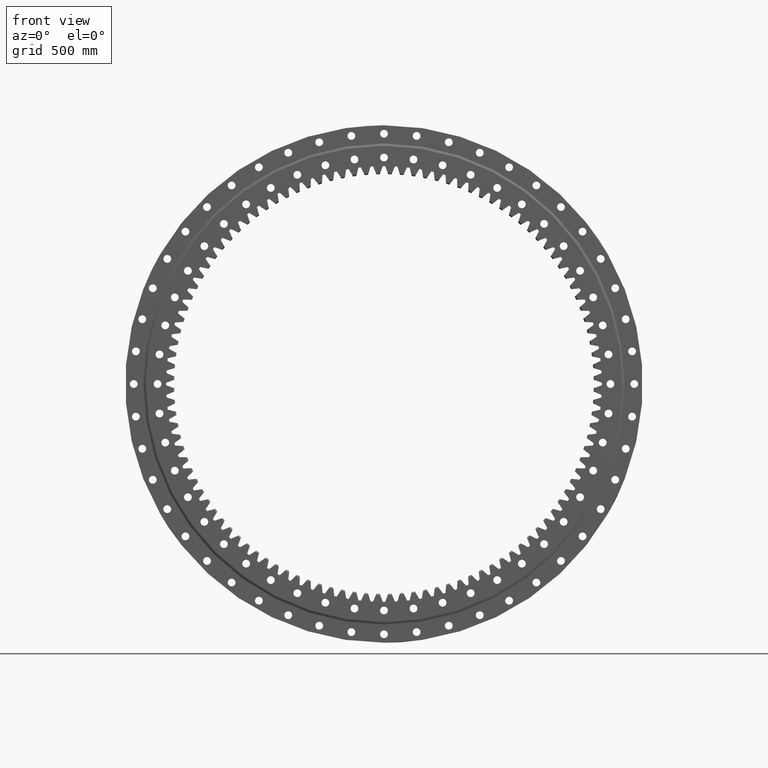
[diagram: clean part render]
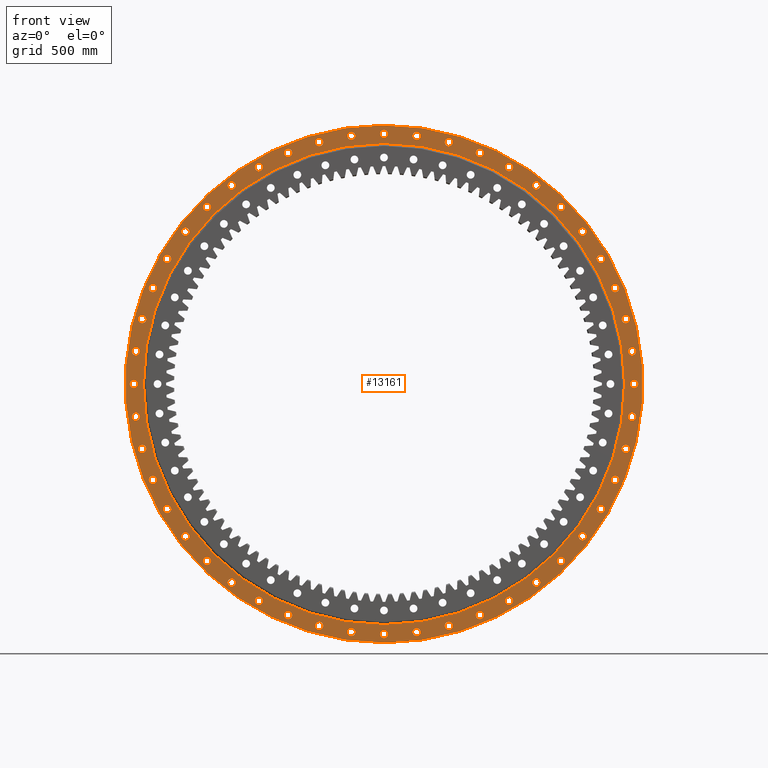
[diagram: same view with one face highlighted and labeled with its STEP entity id]
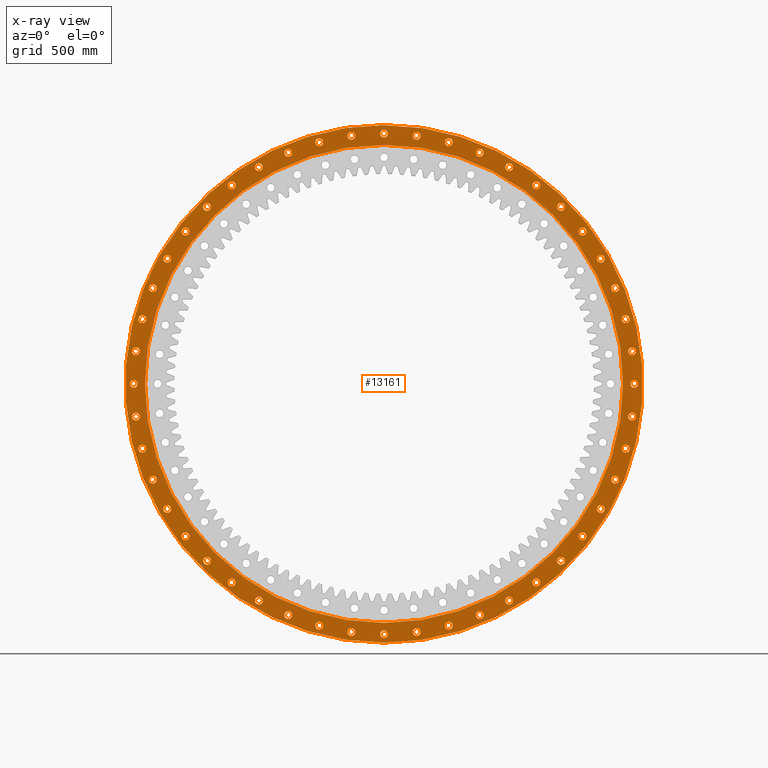
[diagram: x-ray of the same camera — body ghosted, the highlighted face saturated]
A machine part, front view. The second image highlights one B-rep face of the part: STEP entity #13161.
The next image is the same camera in x-ray: the body ghosted, the highlighted face saturated — about 0% of this face is hidden behind the body in this view.
In plain terms, the highlighted planar face has unit normal (-0, 1, 0).
Its self-contained STEP definition (entity closure, byte-faithful):
#35 = CIRCLE ( 'NONE', #11307, 16.49999999999994000 ) ;
#37 = DIRECTION ( 'NONE',  ( 5.551115123125782700E-017, -3.793472749288689700E-017, 1.000000000000000000 ) ) ;
#39 = CARTESIAN_POINT ( 'NONE',  ( 5.868486117720945300E-015, -49.99999999999987200, -1.747108677692887500E-015 ) ) ;
#86 = ORIENTED_EDGE ( 'NONE', *, *, #14477, .F. ) ;
#108 = DIRECTION ( 'NONE',  ( 1.173697223544192200E-016, -1.000000000000000000, -3.494217355385783800E-017 ) ) ;
#147 = AXIS2_PLACEMENT_3D ( 'NONE', #7688, #25710, #10278 ) ;
#163 = DIRECTION ( 'NONE',  ( 0.3826834323650852900, 0.0000000000000000000, -0.9238795325112887400 ) ) ;
#205 = CIRCLE ( 'NONE', #25757, 16.49999999999987200 ) ;
#206 = VERTEX_POINT ( 'NONE', #18378 ) ;
#230 = EDGE_CURVE ( 'NONE', #29022, #21524, #4830, .T. ) ;
#234 = VERTEX_POINT ( 'NONE', #23449 ) ;
#251 = FACE_BOUND ( 'NONE', #17205, .T. ) ;
#255 = CARTESIAN_POINT ( 'NONE',  ( 964.1981237607353700, -49.99999999999973700, -406.2184634555329700 ) ) ;
#306 = CIRCLE ( 'NONE', #31878, 16.50000000000003200 ) ;
#309 = DIRECTION ( 'NONE',  ( 1.173697223544192200E-016, -1.000000000000000000, -3.494217355385783800E-017 ) ) ;
#423 = ORIENTED_EDGE ( 'NONE', *, *, #30724, .F. ) ;
#536 = ORIENTED_EDGE ( 'NONE', *, *, #15987, .F. ) ;
#614 = AXIS2_PLACEMENT_3D ( 'NONE', #9958, #27958, #12537 ) ;
#795 = CARTESIAN_POINT ( 'NONE',  ( -530.7500000000017100, -49.99999999999997200, 902.7859661171808100 ) ) ;
#880 = EDGE_CURVE ( 'NONE', #3862, #10590, #22120, .T. ) ;
#947 = CARTESIAN_POINT ( 'NONE',  ( -1078.000000000000000, -49.99999999999999300, -4.279196895245686100E-012 ) ) ;
#978 = CARTESIAN_POINT ( 'NONE',  ( -138.5535530415861300, -49.99999999999992200, 1035.918720348299800 ) ) ;
#1005 = ORIENTED_EDGE ( 'NONE', *, *, #8854, .F. ) ;
#1010 = VERTEX_POINT ( 'NONE', #30144 ) ;
#1016 = CARTESIAN_POINT ( 'NONE',  ( 530.7499999999877200, -49.99999999999984400, 919.2859661171888800 ) ) ;
#1036 = DIRECTION ( 'NONE',  ( -0.5000000000000053300, 0.0000000000000000000, -0.8660254037844357100 ) ) ;
#1060 = FACE_BOUND ( 'NONE', #28445, .T. ) ;
#1166 = EDGE_CURVE ( 'NONE', #32608, #14741, #7963, .T. ) ;
#1172 = CARTESIAN_POINT ( 'NONE',  ( 530.7499999999877200, -49.99999999999984400, 902.7859661171888800 ) ) ;
#1204 = DIRECTION ( 'NONE',  ( -0.2588190451025103600, 0.0000000000000000000, 0.9659258262890709800 ) ) ;
#1257 = EDGE_LOOP ( 'NONE', ( #17489, #7192 ) ) ;
#1285 = DIRECTION ( 'NONE',  ( -0.1305261922200599800, 0.0000000000000000000, -0.9914448613738092700 ) ) ;
#1298 = ORIENTED_EDGE ( 'NONE', *, *, #27172, .F. ) ;
#1311 = DIRECTION ( 'NONE',  ( -0.3826834323650991600, 0.0000000000000000000, -0.9238795325112829600 ) ) ;
#1348 = VERTEX_POINT ( 'NONE', #11322 ) ;
#1390 = DIRECTION ( 'NONE',  ( 1.173697223544192200E-016, -1.000000000000000000, -3.494217355385783800E-017 ) ) ;
#1429 = EDGE_CURVE ( 'NONE', #6515, #8307, #22089, .T. ) ;
#1454 = CARTESIAN_POINT ( 'NONE',  ( 6.679197459402640700E-014, -49.99999999999991500, 1097.500000000000000 ) ) ;
#1473 = AXIS2_PLACEMENT_3D ( 'NONE', #18656, #3230, #21269 ) ;
#1546 = CIRCLE ( 'NONE', #23860, 16.49999999999987900 ) ;
#1622 = EDGE_LOOP ( 'NONE', ( #21188, #29717 ) ) ;
#1671 = ORIENTED_EDGE ( 'NONE', *, *, #1166, .F. ) ;
#1807 = CARTESIAN_POINT ( 'NONE',  ( 1008.830264605842900, -49.99999999999975800, 274.7364163763377300 ) ) ;
#1808 = DIRECTION ( 'NONE',  ( 1.173697223544192200E-016, -1.000000000000000000, -3.494217355385783800E-017 ) ) ;
#1877 = FACE_BOUND ( 'NONE', #22401, .T. ) ;
#1899 = CARTESIAN_POINT ( 'NONE',  ( 1025.330264605849200, -49.99999999999974400, -274.7364163763151600 ) ) ;
#1968 = AXIS2_PLACEMENT_3D ( 'NONE', #23266, #7844, #25858 ) ;
#1974 = CIRCLE ( 'NONE', #19336, 16.49999999999989000 ) ;
#1975 = CARTESIAN_POINT ( 'NONE',  ( 750.5938482295272300, -49.99999999999975100, -767.0938482295133600 ) ) ;
#2014 = EDGE_LOOP ( 'NONE', ( #5784, #30910 ) ) ;
#2031 = VERTEX_POINT ( 'NONE', #30208 ) ;
#2050 = DIRECTION ( 'NONE',  ( 1.173697223544192200E-016, -1.000000000000000000, -3.494217355385783800E-017 ) ) ;
#2064 = DIRECTION ( 'NONE',  ( 1.173697223544192200E-016, -1.000000000000000000, -3.494217355385783800E-017 ) ) ;
#2151 = VERTEX_POINT ( 'NONE', #7676 ) ;
#2219 = EDGE_LOOP ( 'NONE', ( #1298, #8691 ) ) ;
#2311 = DIRECTION ( 'NONE',  ( -0.9659258262890702000, 0.0000000000000000000, -0.2588190451025135200 ) ) ;
#2338 = CIRCLE ( 'NONE', #23510, 16.49999999999993200 ) ;
#2371 = AXIS2_PLACEMENT_3D ( 'NONE', #3535, #21564, #6130 ) ;
#2416 = AXIS2_PLACEMENT_3D ( 'NONE', #3936, #21961, #6524 ) ;
#2508 = DIRECTION ( 'NONE',  ( 0.4999999999999922300, 0.0000000000000000000, -0.8660254037844431500 ) ) ;
#2519 = EDGE_CURVE ( 'NONE', #12443, #10712, #30486, .T. ) ;
#2546 = CIRCLE ( 'NONE', #16220, 16.49999999999995700 ) ;
#2579 = CIRCLE ( 'NONE', #26148, 16.49999999999991800 ) ;
#2606 = ORIENTED_EDGE ( 'NONE', *, *, #230, .F. ) ;
#2624 = DIRECTION ( 'NONE',  ( 5.551115123125782700E-017, -3.422562128989123800E-017, 1.000000000000000000 ) ) ;
#2652 = DIRECTION ( 'NONE',  ( 1.173697223544192200E-016, -1.000000000000000000, -3.494217355385783800E-017 ) ) ;
#2665 = CARTESIAN_POINT ( 'NONE',  ( -997.1981237607291200, -49.99999999999997200, -406.2184634555472400 ) ) ;
#2676 = FACE_BOUND ( 'NONE', #4105, .T. ) ;
#2689 = ORIENTED_EDGE ( 'NONE', *, *, #27980, .F. ) ;
#2742 = DIRECTION ( 'NONE',  ( 1.173697223544192200E-016, -1.000000000000000000, -3.494217355385783800E-017 ) ) ;
#2839 = AXIS2_PLACEMENT_3D ( 'NONE', #1899, #19932, #4505 ) ;
#2862 = DIRECTION ( 'NONE',  ( 1.173697223544192200E-016, -1.000000000000000000, -3.494217355385783800E-017 ) ) ;
#2868 = CIRCLE ( 'NONE', #12067, 16.49999999999989000 ) ;
#2962 = VERTEX_POINT ( 'NONE', #18450 ) ;
#2979 = AXIS2_PLACEMENT_3D ( 'NONE', #28629, #13199, #31207 ) ;
#3035 = DIRECTION ( 'NONE',  ( 1.173697223544192200E-016, -1.000000000000000000, -3.494217355385783800E-017 ) ) ;
#3063 = FACE_BOUND ( 'NONE', #5880, .T. ) ;
#3090 = FACE_BOUND ( 'NONE', #28635, .T. ) ;
#3120 = ORIENTED_EDGE ( 'NONE', *, *, #23601, .F. ) ;
#3195 = CIRCLE ( 'NONE', #18091, 16.49999999999991800 ) ;
#3230 = DIRECTION ( 'NONE',  ( 1.173697223544192200E-016, -1.000000000000000000, -3.494217355385783800E-017 ) ) ;
#3264 = ORIENTED_EDGE ( 'NONE', *, *, #12518, .T. ) ;
#3268 = CARTESIAN_POINT ( 'NONE',  ( 935.7859661171871700, -49.99999999999973700, -530.7499999999909100 ) ) ;
#3295 = ORIENTED_EDGE ( 'NONE', *, *, #26410, .F. ) ;
#3325 = ORIENTED_EDGE ( 'NONE', *, *, #21403, .F. ) ;
#3374 = EDGE_CURVE ( 'NONE', #17782, #26727, #3408, .T. ) ;
#3376 = AXIS2_PLACEMENT_3D ( 'NONE', #31018, #15609, #163 ) ;
#3397 = VERTEX_POINT ( 'NONE', #30100 ) ;
#3408 = CIRCLE ( 'NONE', #7124, 16.49999999999995000 ) ;
#3439 = CARTESIAN_POINT ( 'NONE',  ( -750.5938482295220000, -49.99999999999998600, 750.5938482295184700 ) ) ;
#3465 = ORIENTED_EDGE ( 'NONE', *, *, #30462, .F. ) ;
#3486 = FACE_BOUND ( 'NONE', #2014, .T. ) ;
#3503 = CIRCLE ( 'NONE', #7616, 16.49999999999995400 ) ;
#3535 = CARTESIAN_POINT ( 'NONE',  ( 5.868486117720945300E-015, -49.99999999999987200, -1.747108677692887500E-015 ) ) ;
#3548 = DIRECTION ( 'NONE',  ( 1.173697223544192200E-016, -1.000000000000000000, -3.494217355385783800E-017 ) ) ;
#3580 = EDGE_CURVE ( 'NONE', #12394, #30708, #11486, .T. ) ;
#3606 = DIRECTION ( 'NONE',  ( 0.5000000000000001100, 0.0000000000000000000, 0.8660254037844384900 ) ) ;
#3627 = DIRECTION ( 'NONE',  ( 1.173697223544192200E-016, -1.000000000000000000, -3.494217355385783800E-017 ) ) ;
#3646 = CARTESIAN_POINT ( 'NONE',  ( -530.7499999999942000, -49.99999999999990100, -919.2859661171851300 ) ) ;
#3691 = ORIENTED_EDGE ( 'NONE', *, *, #30270, .F. ) ;
#3694 = EDGE_CURVE ( 'NONE', #18834, #17584, #9056, .T. ) ;
#3746 = CARTESIAN_POINT ( 'NONE',  ( -274.7364163763186900, -49.99999999999987200, -1041.830264605848000 ) ) ;
#3785 = ORIENTED_EDGE ( 'NONE', *, *, #8133, .F. ) ;
#3840 = CARTESIAN_POINT ( 'NONE',  ( 274.7364163763340900, -49.99999999999980100, -1025.330264605843900 ) ) ;
#3847 = AXIS2_PLACEMENT_3D ( 'NONE', #9945, #27940, #12525 ) ;
#3862 = VERTEX_POINT ( 'NONE', #30501 ) ;
#3863 = VERTEX_POINT ( 'NONE', #33083 ) ;
#3881 = FACE_BOUND ( 'NONE', #28237, .T. ) ;
#3884 = EDGE_LOOP ( 'NONE', ( #6529, #8812 ) ) ;
#3919 = ORIENTED_EDGE ( 'NONE', *, *, #8543, .T. ) ;
#3936 = CARTESIAN_POINT ( 'NONE',  ( 919.2859661171871700, -49.99999999999973700, -530.7499999999909100 ) ) ;
#3987 = EDGE_CURVE ( 'NONE', #5660, #30288, #12273, .T. ) ;
#4014 = CARTESIAN_POINT ( 'NONE',  ( 842.1445707191380700, -49.99999999999979400, 646.2002568927674700 ) ) ;
#4015 = VERTEX_POINT ( 'NONE', #25854 ) ;
#4033 = VERTEX_POINT ( 'NONE', #5467 ) ;
#4100 = CARTESIAN_POINT ( 'NONE',  ( 138.5535530415698100, -49.99999999999989300, 1052.418720348301800 ) ) ;
#4105 = EDGE_LOOP ( 'NONE', ( #14316, #1671 ) ) ;
#4116 = DIRECTION ( 'NONE',  ( 0.1305261922200533800, 0.0000000000000000000, 0.9914448613738101600 ) ) ;
#4381 = ORIENTED_EDGE ( 'NONE', *, *, #10846, .F. ) ;
#4402 = EDGE_CURVE ( 'NONE', #15033, #20411, #21490, .T. ) ;
#4418 = CARTESIAN_POINT ( 'NONE',  ( -750.5938482295159700, -49.99999999999993600, -750.5938482295246100 ) ) ;
#4477 = ORIENTED_EDGE ( 'NONE', *, *, #24654, .F. ) ;
#4479 = EDGE_CURVE ( 'NONE', #206, #30592, #13016, .T. ) ;
#4481 = DIRECTION ( 'NONE',  ( 1.173697223544192200E-016, -1.000000000000000000, -3.494217355385783800E-017 ) ) ;
#4505 = DIRECTION ( 'NONE',  ( 0.9659258262890668700, 0.0000000000000000000, -0.2588190451025260700 ) ) ;
#4569 = ORIENTED_EDGE ( 'NONE', *, *, #9026, .F. ) ;
#4573 = DIRECTION ( 'NONE',  ( 1.173697223544192200E-016, -1.000000000000000000, -3.494217355385783800E-017 ) ) ;
#4677 = AXIS2_PLACEMENT_3D ( 'NONE', #20677, #5236, #23261 ) ;
#4708 = FACE_BOUND ( 'NONE', #18942, .T. ) ;
#4729 = ORIENTED_EDGE ( 'NONE', *, *, #28044, .F. ) ;
#4731 = DIRECTION ( 'NONE',  ( 1.173697223544192200E-016, -1.000000000000000000, -3.494217355385783800E-017 ) ) ;
#4830 = CIRCLE ( 'NONE', #14433, 16.49999999999995700 ) ;
#4844 = CIRCLE ( 'NONE', #20646, 16.49999999999996100 ) ;
#4848 = CIRCLE ( 'NONE', #16377, 16.49999999999994300 ) ;
#4891 = DIRECTION ( 'NONE',  ( 1.173697223544192200E-016, -1.000000000000000000, -3.494217355385783800E-017 ) ) ;
#4902 = ORIENTED_EDGE ( 'NONE', *, *, #3374, .F. ) ;
#4923 = CARTESIAN_POINT ( 'NONE',  ( 997.1981237607261600, -49.99999999999976600, 406.2184634555544600 ) ) ;
#5121 = CARTESIAN_POINT ( 'NONE',  ( 646.2002568927459800, -49.99999999999982200, 842.1445707191546700 ) ) ;
#5124 = ORIENTED_EDGE ( 'NONE', *, *, #8387, .F. ) ;
#5224 = DIRECTION ( 'NONE',  ( 1.173697223544192200E-016, -1.000000000000000000, -3.494217355385783800E-017 ) ) ;
#5228 = CARTESIAN_POINT ( 'NONE',  ( -1061.500000000000000, -49.99999999999999300, -4.284055316005058200E-012 ) ) ;
#5236 = DIRECTION ( 'NONE',  ( 1.173697223544192200E-016, -1.000000000000000000, -3.494217355385783800E-017 ) ) ;
#5290 = ORIENTED_EDGE ( 'NONE', *, *, #14285, .F. ) ;
#5328 = AXIS2_PLACEMENT_3D ( 'NONE', #16836, #1390, #19423 ) ;
#5451 = CARTESIAN_POINT ( 'NONE',  ( 964.1981237607262800, -49.99999999999976600, 406.2184634555544600 ) ) ;
#5467 = CARTESIAN_POINT ( 'NONE',  ( -997.1981237607324100, -50.00000000000000000, 406.2184634555392800 ) ) ;
#5487 = FACE_BOUND ( 'NONE', #12341, .T. ) ;
#5559 = CIRCLE ( 'NONE', #33404, 16.49999999999996400 ) ;
#5636 = CARTESIAN_POINT ( 'NONE',  ( 646.2002568927459800, -49.99999999999982200, 825.6445707191547900 ) ) ;
#5660 = VERTEX_POINT ( 'NONE', #1172 ) ;
#5704 = DIRECTION ( 'NONE',  ( 1.173697223544192200E-016, -1.000000000000000000, -3.494217355385783800E-017 ) ) ;
#5776 = CARTESIAN_POINT ( 'NONE',  ( 138.5535530415930100, -49.99999999999982200, -1052.418720348298800 ) ) ;
#5784 = ORIENTED_EDGE ( 'NONE', *, *, #20497, .F. ) ;
#5811 = CARTESIAN_POINT ( 'NONE',  ( -902.7859661171788700, -49.99999999999996400, -530.7500000000048900 ) ) ;
#5880 = EDGE_LOOP ( 'NONE', ( #27112, #14032 ) ) ;
#5889 = DIRECTION ( 'NONE',  ( 1.173697223544192200E-016, -1.000000000000000000, -3.494217355385783800E-017 ) ) ;
#5893 = CIRCLE ( 'NONE', #28676, 16.49999999999999300 ) ;
#5931 = CARTESIAN_POINT ( 'NONE',  ( 1025.330264605842800, -49.99999999999975800, 274.7364163763377300 ) ) ;
#6038 = DIRECTION ( 'NONE',  ( -0.7071067811865408000, 0.0000000000000000000, 0.7071067811865542300 ) ) ;
#6108 = AXIS2_PLACEMENT_3D ( 'NONE', #31907, #16476, #1036 ) ;
#6130 = DIRECTION ( 'NONE',  ( 5.551115123125782700E-017, -3.793472749288689700E-017, 1.000000000000000000 ) ) ;
#6171 = AXIS2_PLACEMENT_3D ( 'NONE', #33379, #17950, #2508 ) ;
#6178 = ORIENTED_EDGE ( 'NONE', *, *, #24060, .F. ) ;
#6212 = VERTEX_POINT ( 'NONE', #28258 ) ;
#6253 = DIRECTION ( 'NONE',  ( -0.5000000000000053300, 0.0000000000000000000, -0.8660254037844357100 ) ) ;
#6263 = DIRECTION ( 'NONE',  ( 1.173697223544192200E-016, -1.000000000000000000, -3.494217355385783800E-017 ) ) ;
#6311 = FACE_BOUND ( 'NONE', #13587, .T. ) ;
#6327 = CARTESIAN_POINT ( 'NONE',  ( -1008.830264605847100, -49.99999999999999300, 274.7364163763222700 ) ) ;
#6358 = CARTESIAN_POINT ( 'NONE',  ( -406.2184634555437700, -49.99999999999995700, 980.6981237607306000 ) ) ;
#6394 = EDGE_CURVE ( 'NONE', #15581, #1348, #6961, .T. ) ;
#6436 = DIRECTION ( 'NONE',  ( 0.2588190451025166300, 0.0000000000000000000, -0.9659258262890693100 ) ) ;
#6473 = CIRCLE ( 'NONE', #4677, 16.49999999999998600 ) ;
#6515 = VERTEX_POINT ( 'NONE', #31771 ) ;
#6524 = DIRECTION ( 'NONE',  ( 0.8660254037844357100, 0.0000000000000000000, -0.5000000000000053300 ) ) ;
#6529 = ORIENTED_EDGE ( 'NONE', *, *, #31745, .F. ) ;
#6535 = DIRECTION ( 'NONE',  ( -1.173697223544192200E-016, 1.000000000000000000, 3.494217355385783800E-017 ) ) ;
#6581 = VERTEX_POINT ( 'NONE', #19354 ) ;
#6596 = DIRECTION ( 'NONE',  ( 0.7933533402912386100, 0.0000000000000000000, 0.6087614290087161000 ) ) ;
#6618 = AXIS2_PLACEMENT_3D ( 'NONE', #23106, #7687, #25709 ) ;
#6685 = EDGE_CURVE ( 'NONE', #31661, #21446, #21857, .T. ) ;
#6693 = DIRECTION ( 'NONE',  ( 0.1305261922200533800, 0.0000000000000000000, 0.9914448613738101600 ) ) ;
#6696 = CARTESIAN_POINT ( 'NONE',  ( 5.868486117720945300E-015, -49.99999999999987200, -1.747108677692887500E-015 ) ) ;
#6728 = EDGE_LOOP ( 'NONE', ( #2606, #27648 ) ) ;
#6761 = ORIENTED_EDGE ( 'NONE', *, *, #20853, .F. ) ;
#6920 = ORIENTED_EDGE ( 'NONE', *, *, #31982, .F. ) ;
#6923 = DIRECTION ( 'NONE',  ( 1.173697223544192200E-016, -1.000000000000000000, -3.494217355385783800E-017 ) ) ;
#6931 = CARTESIAN_POINT ( 'NONE',  ( 980.6981237607261600, -49.99999999999976600, 406.2184634555544600 ) ) ;
#6961 = CIRCLE ( 'NONE', #30051, 16.49999999999995700 ) ;
#6999 = DIRECTION ( 'NONE',  ( -0.7071067811865542300, 0.0000000000000000000, -0.7071067811865408000 ) ) ;
#7002 = ORIENTED_EDGE ( 'NONE', *, *, #11422, .F. ) ;
#7015 = AXIS2_PLACEMENT_3D ( 'NONE', #15758, #309, #18331 ) ;
#7039 = ORIENTED_EDGE ( 'NONE', *, *, #6685, .F. ) ;
#7070 = VERTEX_POINT ( 'NONE', #25171 ) ;
#7108 = ORIENTED_EDGE ( 'NONE', *, *, #2519, .F. ) ;
#7120 = ORIENTED_EDGE ( 'NONE', *, *, #26359, .F. ) ;
#7124 = AXIS2_PLACEMENT_3D ( 'NONE', #17243, #1808, #19846 ) ;
#7132 = FACE_BOUND ( 'NONE', #14344, .T. ) ;
#7145 = CIRCLE ( 'NONE', #24139, 16.49999999999995700 ) ;
#7175 = CIRCLE ( 'NONE', #25239, 16.50000000000001400 ) ;
#7192 = ORIENTED_EDGE ( 'NONE', *, *, #9392, .F. ) ;
#7209 = VERTEX_POINT ( 'NONE', #15478 ) ;
#7322 = AXIS2_PLACEMENT_3D ( 'NONE', #19050, #3627, #21667 ) ;
#7378 = VERTEX_POINT ( 'NONE', #18685 ) ;
#7381 = DIRECTION ( 'NONE',  ( 1.173697223544192200E-016, -1.000000000000000000, -3.494217355385783800E-017 ) ) ;
#7454 = CARTESIAN_POINT ( 'NONE',  ( 935.7859661171751200, -49.99999999999978000, 530.7500000000113700 ) ) ;
#7465 = CIRCLE ( 'NONE', #2416, 16.50000000000000700 ) ;
#7492 = CARTESIAN_POINT ( 'NONE',  ( 274.7364163763340900, -49.99999999999980100, -1025.330264605843900 ) ) ;
#7501 = ORIENTED_EDGE ( 'NONE', *, *, #17969, .F. ) ;
#7506 = EDGE_LOOP ( 'NONE', ( #33288, #17827 ) ) ;
#7533 = CARTESIAN_POINT ( 'NONE',  ( -138.5535530415861300, -49.99999999999992200, 1068.918720348299800 ) ) ;
#7571 = ORIENTED_EDGE ( 'NONE', *, *, #18021, .F. ) ;
#7608 = EDGE_CURVE ( 'NONE', #10762, #8819, #35, .T. ) ;
#7616 = AXIS2_PLACEMENT_3D ( 'NONE', #27556, #12126, #30135 ) ;
#7623 = EDGE_CURVE ( 'NONE', #24088, #3863, #32691, .T. ) ;
#7674 = CIRCLE ( 'NONE', #31630, 16.49999999999993200 ) ;
#7676 = CARTESIAN_POINT ( 'NONE',  ( 138.5535530415930100, -49.99999999999982200, -1068.918720348298800 ) ) ;
#7687 = DIRECTION ( 'NONE',  ( 1.173697223544192200E-016, -1.000000000000000000, -3.494217355385783800E-017 ) ) ;
#7688 = CARTESIAN_POINT ( 'NONE',  ( 919.2859661171751200, -49.99999999999978000, 530.7500000000113700 ) ) ;
#7689 = VERTEX_POINT ( 'NONE', #12516 ) ;
#7721 = DIRECTION ( 'NONE',  ( 0.6087614290087235400, 0.0000000000000000000, 0.7933533402912329400 ) ) ;
#7777 = VERTEX_POINT ( 'NONE', #12936 ) ;
#7827 = DIRECTION ( 'NONE',  ( -1.000000000000000000, 0.0000000000000000000, 1.052995516776066700E-014 ) ) ;
#7844 = DIRECTION ( 'NONE',  ( 1.173697223544192200E-016, -1.000000000000000000, -3.494217355385783800E-017 ) ) ;
#7845 = DIRECTION ( 'NONE',  ( 1.173697223544192200E-016, -1.000000000000000000, -3.494217355385783800E-017 ) ) ;
#7920 = FACE_BOUND ( 'NONE', #32051, .T. ) ;
#7926 = CIRCLE ( 'NONE', #23904, 16.49999999999995400 ) ;
#7963 = CIRCLE ( 'NONE', #147, 16.49999999999995400 ) ;
#7983 = VERTEX_POINT ( 'NONE', #13950 ) ;
#8018 = CARTESIAN_POINT ( 'NONE',  ( 980.6981237607352600, -49.99999999999973700, -406.2184634555329700 ) ) ;
#8080 = DIRECTION ( 'NONE',  ( 1.173697223544192200E-016, -1.000000000000000000, -3.494217355385783800E-017 ) ) ;
#8133 = EDGE_CURVE ( 'NONE', #10945, #18107, #7674, .T. ) ;
#8210 = CARTESIAN_POINT ( 'NONE',  ( -750.5938482295220000, -49.99999999999998600, 734.0938482295184700 ) ) ;
#8260 = EDGE_LOOP ( 'NONE', ( #30209, #6178 ) ) ;
#8270 = VERTEX_POINT ( 'NONE', #24396 ) ;
#8307 = VERTEX_POINT ( 'NONE', #22039 ) ;
#8316 = CARTESIAN_POINT ( 'NONE',  ( 274.7364163763115800, -49.99999999999987200, 1025.330264605850100 ) ) ;
#8358 = DIRECTION ( 'NONE',  ( 0.1305261922200450800, 0.0000000000000000000, -0.9914448613738111600 ) ) ;
#8387 = EDGE_CURVE ( 'NONE', #11696, #26407, #28606, .T. ) ;
#8416 = CIRCLE ( 'NONE', #14739, 16.49999999999998900 ) ;
#8436 = CARTESIAN_POINT ( 'NONE',  ( 1078.000000000000000, -49.99999999999974400, 1.163445060492741800E-011 ) ) ;
#8514 = DIRECTION ( 'NONE',  ( 0.9659258262890685300, 0.0000000000000000000, 0.2588190451025198000 ) ) ;
#8524 = EDGE_CURVE ( 'NONE', #7983, #32446, #30618, .T. ) ;
#8543 = EDGE_CURVE ( 'NONE', #25917, #18128, #16092, .T. ) ;
#8551 = AXIS2_PLACEMENT_3D ( 'NONE', #28415, #12986, #30997 ) ;
#8554 = CARTESIAN_POINT ( 'NONE',  ( 406.2184634555296200, -49.99999999999985800, 997.1981237607367300 ) ) ;
#8636 = CARTESIAN_POINT ( 'NONE',  ( 858.6445707191525100, -49.99999999999975100, -646.2002568927489400 ) ) ;
#8691 = ORIENTED_EDGE ( 'NONE', *, *, #3580, .F. ) ;
#8704 = DIRECTION ( 'NONE',  ( 0.7071067811865475700, 0.0000000000000000000, 0.7071067811865475700 ) ) ;
#8726 = CIRCLE ( 'NONE', #16663, 16.49999999999997500 ) ;
#8727 = VERTEX_POINT ( 'NONE', #16125 ) ;
#8729 = CARTESIAN_POINT ( 'NONE',  ( 842.1445707191525100, -49.99999999999975100, -646.2002568927489400 ) ) ;
#8737 = CARTESIAN_POINT ( 'NONE',  ( -1068.918720348299300, -49.99999999999998600, -138.5535530415898200 ) ) ;
#8743 = FACE_BOUND ( 'NONE', #13171, .T. ) ;
#8789 = ORIENTED_EDGE ( 'NONE', *, *, #33443, .F. ) ;
#8812 = ORIENTED_EDGE ( 'NONE', *, *, #9509, .F. ) ;
#8819 = VERTEX_POINT ( 'NONE', #11658 ) ;
#8854 = EDGE_CURVE ( 'NONE', #30592, #206, #1974, .T. ) ;
#8934 = CIRCLE ( 'NONE', #26052, 16.49999999999997200 ) ;
#8949 = EDGE_LOOP ( 'NONE', ( #19004, #31452 ) ) ;
#8956 = DIRECTION ( 'NONE',  ( -0.3826834323650771800, 0.0000000000000000000, 0.9238795325112920700 ) ) ;
#8981 = ORIENTED_EDGE ( 'NONE', *, *, #33146, .F. ) ;
#9017 = VERTEX_POINT ( 'NONE', #33356 ) ;
#9026 = EDGE_CURVE ( 'NONE', #26727, #17782, #30583, .T. ) ;
#9056 = CIRCLE ( 'NONE', #9941, 16.49999999999994700 ) ;
#9134 = EDGE_CURVE ( 'NONE', #22066, #4015, #1546, .T. ) ;
#9137 = FACE_OUTER_BOUND ( 'NONE', #27879, .T. ) ;
#9168 = CARTESIAN_POINT ( 'NONE',  ( -406.2184634555363800, -49.99999999999988600, -964.1981237607337800 ) ) ;
#9210 = ORIENTED_EDGE ( 'NONE', *, *, #20868, .F. ) ;
#9253 = DIRECTION ( 'NONE',  ( 1.173697223544192200E-016, -1.000000000000000000, -3.494217355385783800E-017 ) ) ;
#9258 = CIRCLE ( 'NONE', #9551, 16.49999999999995700 ) ;
#9296 = DIRECTION ( 'NONE',  ( 5.551115123125782700E-017, -3.422562128989123800E-017, 1.000000000000000000 ) ) ;
#9392 = EDGE_CURVE ( 'NONE', #33244, #2962, #17260, .T. ) ;
#9415 = CARTESIAN_POINT ( 'NONE',  ( 980.6981237607352600, -49.99999999999973700, -406.2184634555329700 ) ) ;
#9492 = VERTEX_POINT ( 'NONE', #947 ) ;
#9509 = EDGE_CURVE ( 'NONE', #16622, #12977, #306, .T. ) ;
#9513 = ORIENTED_EDGE ( 'NONE', *, *, #9954, .F. ) ;
#9533 = DIRECTION ( 'NONE',  ( 1.173697223544192200E-016, -1.000000000000000000, -3.494217355385783800E-017 ) ) ;
#9538 = DIRECTION ( 'NONE',  ( 0.9238795325112872900, 0.0000000000000000000, 0.3826834323650880600 ) ) ;
#9551 = AXIS2_PLACEMENT_3D ( 'NONE', #5228, #23255, #7827 ) ;
#9566 = FACE_BOUND ( 'NONE', #22092, .T. ) ;
#9598 = CARTESIAN_POINT ( 'NONE',  ( -530.7500000000017100, -49.99999999999997200, 919.2859661171806900 ) ) ;
#9648 = AXIS2_PLACEMENT_3D ( 'NONE', #30896, #15490, #37 ) ;
#9655 = EDGE_CURVE ( 'NONE', #22261, #15967, #22906, .T. ) ;
#9704 = DIRECTION ( 'NONE',  ( 1.173697223544192200E-016, -1.000000000000000000, -3.494217355385783800E-017 ) ) ;
#9752 = CARTESIAN_POINT ( 'NONE',  ( -750.5938482295159700, -49.99999999999993600, -750.5938482295246100 ) ) ;
#9757 = CIRCLE ( 'NONE', #22623, 16.49999999999995400 ) ;
#9777 = DIRECTION ( 'NONE',  ( 1.173697223544192200E-016, -1.000000000000000000, -3.494217355385783800E-017 ) ) ;
#9782 = AXIS2_PLACEMENT_3D ( 'NONE', #4418, #22455, #6999 ) ;
#9814 = CARTESIAN_POINT ( 'NONE',  ( -964.1981237607325300, -50.00000000000000000, 406.2184634555392800 ) ) ;
#9826 = ORIENTED_EDGE ( 'NONE', *, *, #30489, .F. ) ;
#9886 = AXIS2_PLACEMENT_3D ( 'NONE', #6696, #24715, #9296 ) ;
#9912 = CARTESIAN_POINT ( 'NONE',  ( -842.1445707191422800, -49.99999999999995000, -646.2002568927620100 ) ) ;
#9930 = CIRCLE ( 'NONE', #22883, 16.49999999999991100 ) ;
#9941 = AXIS2_PLACEMENT_3D ( 'NONE', #8316, #26343, #10916 ) ;
#9945 = CARTESIAN_POINT ( 'NONE',  ( -1025.330264605847100, -49.99999999999999300, 274.7364163763222700 ) ) ;
#9950 = FACE_BOUND ( 'NONE', #8949, .T. ) ;
#9954 = EDGE_CURVE ( 'NONE', #10616, #19882, #23709, .T. ) ;
#9958 = CARTESIAN_POINT ( 'NONE',  ( -1061.500000000000000, -49.99999999999999300, -4.284055316005058200E-012 ) ) ;
#9967 = ORIENTED_EDGE ( 'NONE', *, *, #15013, .F. ) ;
#9981 = AXIS2_PLACEMENT_3D ( 'NONE', #3646, #21690, #6253 ) ;
#10078 = DIRECTION ( 'NONE',  ( 0.2588190451025166300, 0.0000000000000000000, -0.9659258262890693100 ) ) ;
#10084 = CIRCLE ( 'NONE', #19841, 16.49999999999998600 ) ;
#10142 = CIRCLE ( 'NONE', #7015, 16.49999999999999300 ) ;
#10231 = CARTESIAN_POINT ( 'NONE',  ( 919.2859661171751200, -49.99999999999978000, 530.7500000000113700 ) ) ;
#10234 = VERTEX_POINT ( 'NONE', #21707 ) ;
#10236 = ORIENTED_EDGE ( 'NONE', *, *, #10399, .F. ) ;
#10238 = ORIENTED_EDGE ( 'NONE', *, *, #32792, .F. ) ;
#10267 = ORIENTED_EDGE ( 'NONE', *, *, #13055, .F. ) ;
#10272 = ORIENTED_EDGE ( 'NONE', *, *, #7608, .F. ) ;
#10278 = DIRECTION ( 'NONE',  ( 0.8660254037844384900, 0.0000000000000000000, 0.5000000000000001100 ) ) ;
#10313 = CARTESIAN_POINT ( 'NONE',  ( -406.2184634555363800, -49.99999999999988600, -997.1981237607336700 ) ) ;
#10342 = ORIENTED_EDGE ( 'NONE', *, *, #30510, .F. ) ;
#10356 = FACE_BOUND ( 'NONE', #17368, .T. ) ;
#10399 = EDGE_CURVE ( 'NONE', #29194, #7689, #5559, .T. ) ;
#10531 = EDGE_LOOP ( 'NONE', ( #32329, #9513 ) ) ;
#10590 = VERTEX_POINT ( 'NONE', #13458 ) ;
#10616 = VERTEX_POINT ( 'NONE', #23791 ) ;
#10621 = DIRECTION ( 'NONE',  ( 1.173697223544192200E-016, -1.000000000000000000, -3.494217355385783800E-017 ) ) ;
#10628 = DIRECTION ( 'NONE',  ( 0.9238795325112849600, 0.0000000000000000000, -0.3826834323650938300 ) ) ;
#10635 = DIRECTION ( 'NONE',  ( 1.173697223544192200E-016, -1.000000000000000000, -3.494217355385783800E-017 ) ) ;
#10643 = CARTESIAN_POINT ( 'NONE',  ( -1025.330264605847100, -49.99999999999999300, 274.7364163763222700 ) ) ;
#10648 = EDGE_LOOP ( 'NONE', ( #18979, #7501 ) ) ;
#10689 = CIRCLE ( 'NONE', #25122, 16.49999999999995700 ) ;
#10712 = VERTEX_POINT ( 'NONE', #8737 ) ;
#10739 = FACE_BOUND ( 'NONE', #10648, .T. ) ;
#10762 = VERTEX_POINT ( 'NONE', #795 ) ;
#10826 = CARTESIAN_POINT ( 'NONE',  ( 1052.418720348298200, -49.99999999999975100, 138.5535530415966700 ) ) ;
#10846 = EDGE_CURVE ( 'NONE', #23340, #17376, #7175, .T. ) ;
#10861 = AXIS2_PLACEMENT_3D ( 'NONE', #39, #18059, #2624 ) ;
#10898 = CARTESIAN_POINT ( 'NONE',  ( 6.679197459402640700E-014, -49.99999999999991500, 1097.500000000000000 ) ) ;
#10916 = DIRECTION ( 'NONE',  ( 0.2588190451025229600, 0.0000000000000000000, 0.9659258262890676500 ) ) ;
#10945 = VERTEX_POINT ( 'NONE', #1807 ) ;
#10977 = ORIENTED_EDGE ( 'NONE', *, *, #17952, .F. ) ;
#10985 = VERTEX_POINT ( 'NONE', #25029 ) ;
#11043 = EDGE_CURVE ( 'NONE', #30801, #18442, #16004, .T. ) ;
#11065 = DIRECTION ( 'NONE',  ( 1.173697223544192200E-016, -1.000000000000000000, -3.494217355385783800E-017 ) ) ;
#11068 = DIRECTION ( 'NONE',  ( 1.173697223544192200E-016, -1.000000000000000000, -3.494217355385783800E-017 ) ) ;
#11070 = CIRCLE ( 'NONE', #19695, 16.49999999999998600 ) ;
#11090 = EDGE_LOOP ( 'NONE', ( #18548, #20412 ) ) ;
#11117 = CARTESIAN_POINT ( 'NONE',  ( 1025.330264605842800, -49.99999999999975800, 274.7364163763377300 ) ) ;
#11167 = VERTEX_POINT ( 'NONE', #15652 ) ;
#11185 = AXIS2_PLACEMENT_3D ( 'NONE', #13586, #31603, #16161 ) ;
#11261 = DIRECTION ( 'NONE',  ( 1.173697223544192200E-016, -1.000000000000000000, -3.494217355385783800E-017 ) ) ;
#11274 = EDGE_CURVE ( 'NONE', #1348, #15581, #18007, .T. ) ;
#11307 = AXIS2_PLACEMENT_3D ( 'NONE', #9598, #27622, #12189 ) ;
#11318 = DIRECTION ( 'NONE',  ( 0.7933533402912329400, 0.0000000000000000000, -0.6087614290087235400 ) ) ;
#11322 = CARTESIAN_POINT ( 'NONE',  ( 7.984992198683672100E-012, -49.99999999999983700, -1078.000000000000000 ) ) ;
#11332 = CARTESIAN_POINT ( 'NONE',  ( -646.2002568927520100, -49.99999999999992200, -842.1445707191502400 ) ) ;
#11344 = VERTEX_POINT ( 'NONE', #16424 ) ;
#11422 = EDGE_CURVE ( 'NONE', #15967, #22261, #7926, .T. ) ;
#11441 = ORIENTED_EDGE ( 'NONE', *, *, #8524, .F. ) ;
#11456 = CARTESIAN_POINT ( 'NONE',  ( -646.2002568927591700, -49.99999999999997200, 842.1445707191445500 ) ) ;
#11486 = CIRCLE ( 'NONE', #31275, 16.50000000000000700 ) ;
#11565 = FACE_BOUND ( 'NONE', #19987, .T. ) ;
#11611 = ORIENTED_EDGE ( 'NONE', *, *, #26461, .F. ) ;
#11658 = CARTESIAN_POINT ( 'NONE',  ( -530.7500000000017100, -49.99999999999997200, 935.7859661171806900 ) ) ;
#11696 = VERTEX_POINT ( 'NONE', #4923 ) ;
#11713 = EDGE_LOOP ( 'NONE', ( #19801, #7039 ) ) ;
#11769 = EDGE_LOOP ( 'NONE', ( #18157, #13823 ) ) ;
#11804 = CIRCLE ( 'NONE', #32120, 16.49999999999987900 ) ;
#12011 = DIRECTION ( 'NONE',  ( 0.9238795325112849600, 0.0000000000000000000, -0.3826834323650938300 ) ) ;
#12067 = AXIS2_PLACEMENT_3D ( 'NONE', #32104, #16652, #1204 ) ;
#12119 = CARTESIAN_POINT ( 'NONE',  ( 997.1981237607352600, -49.99999999999973700, -406.2184634555329700 ) ) ;
#12126 = DIRECTION ( 'NONE',  ( 1.173697223544192200E-016, -1.000000000000000000, -3.494217355385783800E-017 ) ) ;
#12189 = DIRECTION ( 'NONE',  ( -0.4999999999999871800, 0.0000000000000000000, 0.8660254037844459200 ) ) ;
#12245 = DIRECTION ( 'NONE',  ( 1.173697223544192200E-016, -1.000000000000000000, -3.494217355385783800E-017 ) ) ;
#12273 = CIRCLE ( 'NONE', #16173, 16.49999999999995400 ) ;
#12306 = CARTESIAN_POINT ( 'NONE',  ( -274.7364163763186900, -49.99999999999987200, -1025.330264605848000 ) ) ;
#12341 = EDGE_LOOP ( 'NONE', ( #8981, #32915 ) ) ;
#12347 = DIRECTION ( 'NONE',  ( -0.7071067811865542300, 0.0000000000000000000, -0.7071067811865408000 ) ) ;
#12370 = DIRECTION ( 'NONE',  ( 1.173697223544192200E-016, -1.000000000000000000, -3.494217355385783800E-017 ) ) ;
#12382 = FACE_BOUND ( 'NONE', #10531, .T. ) ;
#12394 = VERTEX_POINT ( 'NONE', #18290 ) ;
#12443 = VERTEX_POINT ( 'NONE', #31367 ) ;
#12456 = CARTESIAN_POINT ( 'NONE',  ( 138.5535530415698100, -49.99999999999989300, 1052.418720348301800 ) ) ;
#12499 = DIRECTION ( 'NONE',  ( -0.7933533402912386100, 0.0000000000000000000, -0.6087614290087161000 ) ) ;
#12516 = CARTESIAN_POINT ( 'NONE',  ( 825.6445707191525100, -49.99999999999975100, -646.2002568927489400 ) ) ;
#12518 = EDGE_CURVE ( 'NONE', #18128, #25917, #16330, .T. ) ;
#12525 = DIRECTION ( 'NONE',  ( -0.9659258262890652000, 0.0000000000000000000, 0.2588190451025323400 ) ) ;
#12537 = DIRECTION ( 'NONE',  ( -1.000000000000000000, 0.0000000000000000000, 1.052995516776066700E-014 ) ) ;
#12539 = EDGE_LOOP ( 'NONE', ( #536, #16828 ) ) ;
#12593 = DIRECTION ( 'NONE',  ( 1.173697223544192200E-016, -1.000000000000000000, -3.494217355385783800E-017 ) ) ;
#12660 = EDGE_CURVE ( 'NONE', #25047, #22005, #28512, .T. ) ;
#12681 = CARTESIAN_POINT ( 'NONE',  ( 734.0938482295107400, -49.99999999999980800, 750.5938482295299500 ) ) ;
#12768 = VERTEX_POINT ( 'NONE', #30456 ) ;
#12788 = AXIS2_PLACEMENT_3D ( 'NONE', #19997, #4573, #22600 ) ;
#12819 = DIRECTION ( 'NONE',  ( 0.8660254037844384900, 0.0000000000000000000, 0.5000000000000001100 ) ) ;
#12898 = EDGE_LOOP ( 'NONE', ( #9826, #26079 ) ) ;
#12907 = CIRCLE ( 'NONE', #32290, 16.50000000000003200 ) ;
#12918 = CIRCLE ( 'NONE', #2979, 16.49999999999996800 ) ;
#12925 = AXIS2_PLACEMENT_3D ( 'NONE', #3439, #21469, #6038 ) ;
#12936 = CARTESIAN_POINT ( 'NONE',  ( -1045.000000000000200, -49.99999999999999300, -4.283049430454910900E-012 ) ) ;
#12977 = VERTEX_POINT ( 'NONE', #16003 ) ;
#12986 = DIRECTION ( 'NONE',  ( 1.173697223544192200E-016, -1.000000000000000000, -3.494217355385783800E-017 ) ) ;
#13016 = CIRCLE ( 'NONE', #32825, 16.49999999999989000 ) ;
#13055 = EDGE_CURVE ( 'NONE', #30288, #5660, #18795, .T. ) ;
#13075 = CARTESIAN_POINT ( 'NONE',  ( 7.994384134627073400E-012, -49.99999999999983700, -1061.500000000000000 ) ) ;
#13154 = DIRECTION ( 'NONE',  ( 1.173697223544192200E-016, -1.000000000000000000, -3.494217355385783800E-017 ) ) ;
#13159 = FACE_BOUND ( 'NONE', #17219, .T. ) ;
#13161 = ADVANCED_FACE ( 'NONE', ( #10356, #16389, #3090, #3486, #30105, #9566, #2676, #29289, #22464, #15595, #8743, #1877, #28475, #21634, #14812, #7920, #1060, #27698, #20814, #13981, #7132, #251, #26885, #20025, #13159, #6311, #32923, #26057, #19188, #12382, #5487, #32111, #25268, #18373, #11565, #4708, #31284, #24445, #17579, #10739, #3881, #30493, #23609, #16776, #9950, #3063, #29673, #22845, #15964, #9137 ), #32328, .F. ) ;
#13171 = EDGE_LOOP ( 'NONE', ( #9967, #10238 ) ) ;
#13199 = DIRECTION ( 'NONE',  ( 1.173697223544192200E-016, -1.000000000000000000, -3.494217355385783800E-017 ) ) ;
#13227 = DIRECTION ( 'NONE',  ( -0.9659258262890652000, 0.0000000000000000000, 0.2588190451025323400 ) ) ;
#13228 = CIRCLE ( 'NONE', #11185, 16.50000000000003200 ) ;
#13281 = EDGE_CURVE ( 'NONE', #28592, #14774, #26438, .T. ) ;
#13322 = CARTESIAN_POINT ( 'NONE',  ( -1041.830264605847100, -49.99999999999999300, 274.7364163763222700 ) ) ;
#13400 = DIRECTION ( 'NONE',  ( 0.9914448613738107200, 0.0000000000000000000, 0.1305261922200484400 ) ) ;
#13433 = CARTESIAN_POINT ( 'NONE',  ( -274.7364163763269900, -49.99999999999994300, 1025.330264605845700 ) ) ;
#13438 = CARTESIAN_POINT ( 'NONE',  ( -1.539506204475560100E-011, -49.99999999999990800, 1061.500000000000000 ) ) ;
#13448 = DIRECTION ( 'NONE',  ( 1.173697223544192200E-016, -1.000000000000000000, -3.494217355385783800E-017 ) ) ;
#13458 = CARTESIAN_POINT ( 'NONE',  ( -138.5535530415771500, -49.99999999999985100, -1035.918720348300900 ) ) ;
#13586 = CARTESIAN_POINT ( 'NONE',  ( -646.2002568927520100, -49.99999999999992200, -842.1445707191502400 ) ) ;
#13587 = EDGE_LOOP ( 'NONE', ( #18185, #7002 ) ) ;
#13704 = DIRECTION ( 'NONE',  ( 0.9659258262890685300, 0.0000000000000000000, 0.2588190451025198000 ) ) ;
#13823 = ORIENTED_EDGE ( 'NONE', *, *, #25332, .F. ) ;
#13837 = EDGE_CURVE ( 'NONE', #10590, #3862, #17944, .T. ) ;
#13842 = DIRECTION ( 'NONE',  ( 1.173697223544192200E-016, -1.000000000000000000, -3.494217355385783800E-017 ) ) ;
#13877 = AXIS2_PLACEMENT_3D ( 'NONE', #25208, #9777, #27799 ) ;
#13929 = DIRECTION ( 'NONE',  ( -0.6087614290087277600, 0.0000000000000000000, -0.7933533402912297200 ) ) ;
#13939 = ORIENTED_EDGE ( 'NONE', *, *, #27294, .F. ) ;
#13950 = CARTESIAN_POINT ( 'NONE',  ( 530.7500000000081900, -49.99999999999977300, -902.7859661171770500 ) ) ;
#13981 = FACE_BOUND ( 'NONE', #12539, .T. ) ;
#13994 = CIRCLE ( 'NONE', #17957, 16.49999999999994000 ) ;
#14011 = CARTESIAN_POINT ( 'NONE',  ( 138.5535530415930100, -49.99999999999982200, -1052.418720348298800 ) ) ;
#14018 = AXIS2_PLACEMENT_3D ( 'NONE', #14844, #32845, #17382 ) ;
#14032 = ORIENTED_EDGE ( 'NONE', *, *, #4402, .F. ) ;
#14039 = DIRECTION ( 'NONE',  ( -0.6087614290087117700, 0.0000000000000000000, 0.7933533402912418300 ) ) ;
#14111 = DIRECTION ( 'NONE',  ( 1.173697223544192200E-016, -1.000000000000000000, -3.494217355385783800E-017 ) ) ;
#14171 = EDGE_CURVE ( 'NONE', #10985, #7378, #16710, .T. ) ;
#14218 = DIRECTION ( 'NONE',  ( 1.173697223544192200E-016, -1.000000000000000000, -3.494217355385783800E-017 ) ) ;
#14285 = EDGE_CURVE ( 'NONE', #8270, #20612, #21959, .T. ) ;
#14316 = ORIENTED_EDGE ( 'NONE', *, *, #27366, .F. ) ;
#14344 = EDGE_LOOP ( 'NONE', ( #10342, #86 ) ) ;
#14387 = CARTESIAN_POINT ( 'NONE',  ( 1041.830264605842800, -49.99999999999975800, 274.7364163763377300 ) ) ;
#14433 = AXIS2_PLACEMENT_3D ( 'NONE', #13438, #10635, #21099 ) ;
#14477 = EDGE_CURVE ( 'NONE', #27938, #234, #2579, .T. ) ;
#14501 = EDGE_CURVE ( 'NONE', #32446, #7983, #15503, .T. ) ;
#14504 = CARTESIAN_POINT ( 'NONE',  ( 646.2002568927645100, -49.99999999999976600, -858.6445707191402300 ) ) ;
#14522 = EDGE_LOOP ( 'NONE', ( #1005, #21391 ) ) ;
#14528 = AXIS2_PLACEMENT_3D ( 'NONE', #9752, #27775, #12347 ) ;
#14576 = DIRECTION ( 'NONE',  ( 1.173697223544192200E-016, -1.000000000000000000, -3.494217355385783800E-017 ) ) ;
#14664 = ORIENTED_EDGE ( 'NONE', *, *, #29030, .F. ) ;
#14679 = CIRCLE ( 'NONE', #22958, 16.50000000000003900 ) ;
#14682 = VERTEX_POINT ( 'NONE', #9814 ) ;
#14739 = AXIS2_PLACEMENT_3D ( 'NONE', #10643, #28654, #13227 ) ;
#14741 = VERTEX_POINT ( 'NONE', #7454 ) ;
#14774 = VERTEX_POINT ( 'NONE', #20499 ) ;
#14785 = AXIS2_PLACEMENT_3D ( 'NONE', #25129, #9704, #27729 ) ;
#14812 = FACE_BOUND ( 'NONE', #2219, .T. ) ;
#14844 = CARTESIAN_POINT ( 'NONE',  ( 406.2184634555296200, -49.99999999999985800, 980.6981237607367300 ) ) ;
#14909 = DIRECTION ( 'NONE',  ( -0.2588190451025291800, 0.0000000000000000000, -0.9659258262890660900 ) ) ;
#14919 = CARTESIAN_POINT ( 'NONE',  ( 1045.000000000000200, -49.99999999999974400, 1.169783440177301700E-011 ) ) ;
#15013 = EDGE_CURVE ( 'NONE', #27054, #22398, #2546, .T. ) ;
#15033 = VERTEX_POINT ( 'NONE', #978 ) ;
#15122 = DIRECTION ( 'NONE',  ( 1.173697223544192200E-016, -1.000000000000000000, -3.494217355385783800E-017 ) ) ;
#15153 = EDGE_LOOP ( 'NONE', ( #11441, #25495 ) ) ;
#15227 = CARTESIAN_POINT ( 'NONE',  ( -1.540445398069900600E-011, -49.99999999999990800, 1045.000000000000200 ) ) ;
#15254 = EDGE_CURVE ( 'NONE', #11167, #22148, #24309, .T. ) ;
#15301 = CARTESIAN_POINT ( 'NONE',  ( 858.6445707191380700, -49.99999999999979400, 646.2002568927674700 ) ) ;
#15308 = CARTESIAN_POINT ( 'NONE',  ( 750.5938482295107400, -49.99999999999980800, 750.5938482295299500 ) ) ;
#15339 = CARTESIAN_POINT ( 'NONE',  ( -734.0938482295159700, -49.99999999999993600, -750.5938482295246100 ) ) ;
#15478 = CARTESIAN_POINT ( 'NONE',  ( -1041.830264605844800, -49.99999999999997900, -274.7364163763305700 ) ) ;
#15480 = CIRCLE ( 'NONE', #10861, 1013.698750000000100 ) ;
#15490 = DIRECTION ( 'NONE',  ( 1.173697223544192200E-016, -1.000000000000000000, -3.494217355385783800E-017 ) ) ;
#15503 = CIRCLE ( 'NONE', #24429, 16.49999999999999300 ) ;
#15553 = CARTESIAN_POINT ( 'NONE',  ( 919.2859661171871700, -49.99999999999973700, -530.7499999999909100 ) ) ;
#15581 = VERTEX_POINT ( 'NONE', #24143 ) ;
#15595 = FACE_BOUND ( 'NONE', #8260, .T. ) ;
#15597 = EDGE_LOOP ( 'NONE', ( #27145, #4477 ) ) ;
#15609 = DIRECTION ( 'NONE',  ( 1.173697223544192200E-016, -1.000000000000000000, -3.494217355385783800E-017 ) ) ;
#15652 = CARTESIAN_POINT ( 'NONE',  ( -646.2002568927591700, -49.99999999999997200, 858.6445707191444400 ) ) ;
#15660 = ORIENTED_EDGE ( 'NONE', *, *, #6394, .F. ) ;
#15669 = DIRECTION ( 'NONE',  ( -7.038473828917508000E-015, 0.0000000000000000000, -1.000000000000000000 ) ) ;
#15717 = CIRCLE ( 'NONE', #26465, 16.49999999999998600 ) ;
#15758 = CARTESIAN_POINT ( 'NONE',  ( -919.2859661171788700, -49.99999999999996400, -530.7500000000048900 ) ) ;
#15964 = FACE_BOUND ( 'NONE', #27983, .T. ) ;
#15967 = VERTEX_POINT ( 'NONE', #10313 ) ;
#15968 = EDGE_CURVE ( 'NONE', #4033, #14682, #9757, .T. ) ;
#15987 = EDGE_CURVE ( 'NONE', #6581, #20200, #8934, .T. ) ;
#16003 = CARTESIAN_POINT ( 'NONE',  ( -646.2002568927520100, -49.99999999999992200, -825.6445707191503500 ) ) ;
#16004 = CIRCLE ( 'NONE', #3847, 16.49999999999998900 ) ;
#16027 = DIRECTION ( 'NONE',  ( -0.2588190451025103600, 0.0000000000000000000, 0.9659258262890709800 ) ) ;
#16069 = ORIENTED_EDGE ( 'NONE', *, *, #26577, .F. ) ;
#16092 = CIRCLE ( 'NONE', #9648, 1097.500000000000000 ) ;
#16096 = CARTESIAN_POINT ( 'NONE',  ( -646.2002568927520100, -49.99999999999992200, -858.6445707191502400 ) ) ;
#16102 = CIRCLE ( 'NONE', #31920, 16.49999999999998600 ) ;
#16125 = CARTESIAN_POINT ( 'NONE',  ( -750.5938482295220000, -49.99999999999998600, 767.0938482295184700 ) ) ;
#16161 = DIRECTION ( 'NONE',  ( -0.6087614290087277600, 0.0000000000000000000, -0.7933533402912297200 ) ) ;
#16173 = AXIS2_PLACEMENT_3D ( 'NONE', #18082, #2652, #20679 ) ;
#16220 = AXIS2_PLACEMENT_3D ( 'NONE', #29263, #13842, #31854 ) ;
#16221 = AXIS2_PLACEMENT_3D ( 'NONE', #20154, #4731, #22750 ) ;
#16238 = ORIENTED_EDGE ( 'NONE', *, *, #880, .F. ) ;
#16326 = AXIS2_PLACEMENT_3D ( 'NONE', #24671, #9253, #8704 ) ;
#16330 = CIRCLE ( 'NONE', #2371, 1097.500000000000000 ) ;
#16377 = AXIS2_PLACEMENT_3D ( 'NONE', #18965, #3548, #21589 ) ;
#16389 = FACE_BOUND ( 'NONE', #18744, .T. ) ;
#16406 = CIRCLE ( 'NONE', #12788, 16.49999999999989700 ) ;
#16424 = CARTESIAN_POINT ( 'NONE',  ( -1008.830264605844900, -49.99999999999997900, -274.7364163763305700 ) ) ;
#16476 = DIRECTION ( 'NONE',  ( 1.173697223544192200E-016, -1.000000000000000000, -3.494217355385783800E-017 ) ) ;
#16580 = DIRECTION ( 'NONE',  ( 0.1305261922200450800, 0.0000000000000000000, -0.9914448613738111600 ) ) ;
#16616 = AXIS2_PLACEMENT_3D ( 'NONE', #1454, #6535, #22096 ) ;
#16622 = VERTEX_POINT ( 'NONE', #16096 ) ;
#16652 = DIRECTION ( 'NONE',  ( 1.173697223544192200E-016, -1.000000000000000000, -3.494217355385783800E-017 ) ) ;
#16658 = VERTEX_POINT ( 'NONE', #26583 ) ;
#16663 = AXIS2_PLACEMENT_3D ( 'NONE', #12306, #30311, #14909 ) ;
#16710 = CIRCLE ( 'NONE', #26805, 16.49999999999989700 ) ;
#16734 = DIRECTION ( 'NONE',  ( 1.173697223544192200E-016, -1.000000000000000000, -3.494217355385783800E-017 ) ) ;
#16737 = EDGE_CURVE ( 'NONE', #14774, #28592, #2868, .T. ) ;
#16761 = DIRECTION ( 'NONE',  ( 1.173697223544192200E-016, -1.000000000000000000, -3.494217355385783800E-017 ) ) ;
#16776 = FACE_BOUND ( 'NONE', #33087, .T. ) ;
#16828 = ORIENTED_EDGE ( 'NONE', *, *, #23451, .F. ) ;
#16836 = CARTESIAN_POINT ( 'NONE',  ( -919.2859661171833100, -50.00000000000000000, 530.7499999999973900 ) ) ;
#17039 = CIRCLE ( 'NONE', #18914, 16.49999999999987200 ) ;
#17176 = CIRCLE ( 'NONE', #9782, 16.49999999999996100 ) ;
#17205 = EDGE_LOOP ( 'NONE', ( #3120, #23492 ) ) ;
#17219 = EDGE_LOOP ( 'NONE', ( #26468, #24725 ) ) ;
#17243 = CARTESIAN_POINT ( 'NONE',  ( -980.6981237607292300, -49.99999999999997200, -406.2184634555472400 ) ) ;
#17260 = CIRCLE ( 'NONE', #16326, 16.49999999999996100 ) ;
#17368 = EDGE_LOOP ( 'NONE', ( #28088, #11611 ) ) ;
#17376 = VERTEX_POINT ( 'NONE', #8554 ) ;
#17382 = DIRECTION ( 'NONE',  ( 0.3826834323650910600, 0.0000000000000000000, 0.9238795325112864100 ) ) ;
#17424 = AXIS2_PLACEMENT_3D ( 'NONE', #17473, #2050, #20087 ) ;
#17473 = CARTESIAN_POINT ( 'NONE',  ( -1052.418720348299300, -49.99999999999998600, -138.5535530415898200 ) ) ;
#17485 = CARTESIAN_POINT ( 'NONE',  ( 750.5938482295272300, -49.99999999999975100, -750.5938482295133600 ) ) ;
#17489 = ORIENTED_EDGE ( 'NONE', *, *, #31536, .F. ) ;
#17579 = FACE_BOUND ( 'NONE', #11769, .T. ) ;
#17584 = VERTEX_POINT ( 'NONE', #25001 ) ;
#17739 = DIRECTION ( 'NONE',  ( 1.173697223544192200E-016, -1.000000000000000000, -3.494217355385783800E-017 ) ) ;
#17782 = VERTEX_POINT ( 'NONE', #2665 ) ;
#17827 = ORIENTED_EDGE ( 'NONE', *, *, #15968, .F. ) ;
#17872 = DIRECTION ( 'NONE',  ( 0.7071067811865475700, 0.0000000000000000000, 0.7071067811865475700 ) ) ;
#17935 = VERTEX_POINT ( 'NONE', #5811 ) ;
#17944 = CIRCLE ( 'NONE', #20529, 16.49999999999990400 ) ;
#17950 = DIRECTION ( 'NONE',  ( 1.173697223544192200E-016, -1.000000000000000000, -3.494217355385783800E-017 ) ) ;
#17952 = EDGE_CURVE ( 'NONE', #24066, #8727, #24592, .T. ) ;
#17957 = AXIS2_PLACEMENT_3D ( 'NONE', #20321, #4891, #22926 ) ;
#17969 = EDGE_CURVE ( 'NONE', #3863, #24088, #4848, .T. ) ;
#18007 = CIRCLE ( 'NONE', #1473, 16.49999999999995700 ) ;
#18021 = EDGE_CURVE ( 'NONE', #29958, #16658, #10084, .T. ) ;
#18022 = EDGE_CURVE ( 'NONE', #22148, #11167, #3195, .T. ) ;
#18032 = CARTESIAN_POINT ( 'NONE',  ( 274.7364163763115800, -49.99999999999987200, 1041.830264605849800 ) ) ;
#18059 = DIRECTION ( 'NONE',  ( 1.173697223544192200E-016, -1.000000000000000000, -3.494217355385783800E-017 ) ) ;
#18066 = EDGE_CURVE ( 'NONE', #16658, #29958, #16102, .T. ) ;
#18082 = CARTESIAN_POINT ( 'NONE',  ( 530.7499999999877200, -49.99999999999984400, 919.2859661171888800 ) ) ;
#18091 = AXIS2_PLACEMENT_3D ( 'NONE', #11456, #29461, #14039 ) ;
#18107 = VERTEX_POINT ( 'NONE', #14387 ) ;
#18119 = DIRECTION ( 'NONE',  ( 0.8660254037844357100, 0.0000000000000000000, -0.5000000000000053300 ) ) ;
#18128 = VERTEX_POINT ( 'NONE', #19664 ) ;
#18142 = AXIS2_PLACEMENT_3D ( 'NONE', #28886, #13448, #31465 ) ;
#18157 = ORIENTED_EDGE ( 'NONE', *, *, #31875, .F. ) ;
#18163 = CARTESIAN_POINT ( 'NONE',  ( 406.2184634555510500, -49.99999999999978700, -980.6981237607275300 ) ) ;
#18185 = ORIENTED_EDGE ( 'NONE', *, *, #9655, .F. ) ;
#18187 = EDGE_CURVE ( 'NONE', #17376, #23340, #26593, .T. ) ;
#18290 = CARTESIAN_POINT ( 'NONE',  ( 902.7859661171871700, -49.99999999999973700, -530.7499999999909100 ) ) ;
#18299 = CARTESIAN_POINT ( 'NONE',  ( 646.2002568927459800, -49.99999999999982200, 842.1445707191546700 ) ) ;
#18331 = DIRECTION ( 'NONE',  ( -0.8660254037844431500, 0.0000000000000000000, -0.4999999999999922300 ) ) ;
#18373 = FACE_BOUND ( 'NONE', #23771, .T. ) ;
#18378 = CARTESIAN_POINT ( 'NONE',  ( 138.5535530415698100, -49.99999999999989300, 1035.918720348301800 ) ) ;
#18442 = VERTEX_POINT ( 'NONE', #13322 ) ;
#18450 = CARTESIAN_POINT ( 'NONE',  ( 767.0938482295106300, -49.99999999999980800, 750.5938482295299500 ) ) ;
#18458 = CARTESIAN_POINT ( 'NONE',  ( 1052.418720348298200, -49.99999999999975100, 138.5535530415966700 ) ) ;
#18482 = AXIS2_PLACEMENT_3D ( 'NONE', #26050, #10621, #28636 ) ;
#18548 = ORIENTED_EDGE ( 'NONE', *, *, #20681, .F. ) ;
#18656 = CARTESIAN_POINT ( 'NONE',  ( 7.994384134627073400E-012, -49.99999999999983700, -1061.500000000000000 ) ) ;
#18685 = CARTESIAN_POINT ( 'NONE',  ( 1068.918720348301300, -49.99999999999973700, -138.5535530415734800 ) ) ;
#18734 = CARTESIAN_POINT ( 'NONE',  ( -1035.918720348300200, -50.00000000000000000, 138.5535530415813200 ) ) ;
#18737 = EDGE_CURVE ( 'NONE', #7777, #9492, #33401, .T. ) ;
#18744 = EDGE_LOOP ( 'NONE', ( #21916, #4381 ) ) ;
#18795 = CIRCLE ( 'NONE', #27657, 16.49999999999995400 ) ;
#18834 = VERTEX_POINT ( 'NONE', #18032 ) ;
#18880 = CARTESIAN_POINT ( 'NONE',  ( 406.2184634555510500, -49.99999999999978700, -997.1981237607275300 ) ) ;
#18881 = CIRCLE ( 'NONE', #31973, 16.49999999999996400 ) ;
#18914 = AXIS2_PLACEMENT_3D ( 'NONE', #14011, #32029, #16580 ) ;
#18942 = EDGE_LOOP ( 'NONE', ( #8789, #5290 ) ) ;
#18965 = CARTESIAN_POINT ( 'NONE',  ( -842.1445707191478500, -49.99999999999998600, 646.2002568927553100 ) ) ;
#18979 = ORIENTED_EDGE ( 'NONE', *, *, #7623, .F. ) ;
#19004 = ORIENTED_EDGE ( 'NONE', *, *, #16737, .F. ) ;
#19019 = AXIS2_PLACEMENT_3D ( 'NONE', #26494, #11068, #29070 ) ;
#19023 = DIRECTION ( 'NONE',  ( 1.173697223544192200E-016, -1.000000000000000000, -3.494217355385783800E-017 ) ) ;
#19050 = CARTESIAN_POINT ( 'NONE',  ( -1052.418720348299300, -49.99999999999998600, -138.5535530415898200 ) ) ;
#19188 = FACE_BOUND ( 'NONE', #30086, .T. ) ;
#19222 = CARTESIAN_POINT ( 'NONE',  ( -935.7859661171831900, -50.00000000000000000, 530.7499999999973900 ) ) ;
#19331 = CIRCLE ( 'NONE', #8551, 16.49999999999997500 ) ;
#19336 = AXIS2_PLACEMENT_3D ( 'NONE', #4100, #22128, #6693 ) ;
#19354 = CARTESIAN_POINT ( 'NONE',  ( 406.2184634555510500, -49.99999999999978700, -964.1981237607275300 ) ) ;
#19423 = DIRECTION ( 'NONE',  ( -0.8660254037844310500, 0.0000000000000000000, 0.5000000000000132100 ) ) ;
#19448 = EDGE_CURVE ( 'NONE', #18107, #10945, #2338, .T. ) ;
#19462 = ORIENTED_EDGE ( 'NONE', *, *, #21151, .F. ) ;
#19644 = AXIS2_PLACEMENT_3D ( 'NONE', #9415, #27433, #12011 ) ;
#19664 = CARTESIAN_POINT ( 'NONE',  ( -1.953284746827274800E-013, -49.99999999999982900, -1097.500000000000000 ) ) ;
#19695 = AXIS2_PLACEMENT_3D ( 'NONE', #9912, #27914, #12499 ) ;
#19754 = CARTESIAN_POINT ( 'NONE',  ( -964.1981237607292300, -49.99999999999997200, -406.2184634555472400 ) ) ;
#19801 = ORIENTED_EDGE ( 'NONE', *, *, #31593, .F. ) ;
#19841 = AXIS2_PLACEMENT_3D ( 'NONE', #21693, #6263, #24276 ) ;
#19846 = DIRECTION ( 'NONE',  ( -0.9238795325112899600, 0.0000000000000000000, -0.3826834323650824000 ) ) ;
#19882 = VERTEX_POINT ( 'NONE', #33013 ) ;
#19904 = CARTESIAN_POINT ( 'NONE',  ( 842.1445707191525100, -49.99999999999975100, -646.2002568927489400 ) ) ;
#19932 = DIRECTION ( 'NONE',  ( 1.173697223544192200E-016, -1.000000000000000000, -3.494217355385783800E-017 ) ) ;
#19987 = EDGE_LOOP ( 'NONE', ( #29520, #7120 ) ) ;
#19997 = CARTESIAN_POINT ( 'NONE',  ( 1052.418720348301300, -49.99999999999973700, -138.5535530415734800 ) ) ;
#20025 = FACE_BOUND ( 'NONE', #20580, .T. ) ;
#20087 = DIRECTION ( 'NONE',  ( -0.9914448613738113800, 0.0000000000000000000, -0.1305261922200434400 ) ) ;
#20105 = DIRECTION ( 'NONE',  ( 0.7071067811865441300, 0.0000000000000000000, -0.7071067811865507900 ) ) ;
#20141 = AXIS2_PLACEMENT_3D ( 'NONE', #30526, #15122, #33118 ) ;
#20154 = CARTESIAN_POINT ( 'NONE',  ( -406.2184634555437700, -49.99999999999995700, 980.6981237607306000 ) ) ;
#20200 = VERTEX_POINT ( 'NONE', #18880 ) ;
#20317 = CIRCLE ( 'NONE', #30499, 16.50000000000007800 ) ;
#20321 = CARTESIAN_POINT ( 'NONE',  ( -530.7500000000017100, -49.99999999999997200, 919.2859661171806900 ) ) ;
#20411 = VERTEX_POINT ( 'NONE', #7533 ) ;
#20412 = ORIENTED_EDGE ( 'NONE', *, *, #22162, .F. ) ;
#20497 = EDGE_CURVE ( 'NONE', #1010, #24061, #24485, .T. ) ;
#20499 = CARTESIAN_POINT ( 'NONE',  ( -274.7364163763269900, -49.99999999999994300, 1041.830264605845700 ) ) ;
#20529 = AXIS2_PLACEMENT_3D ( 'NONE', #23519, #8080, #26119 ) ;
#20580 = EDGE_LOOP ( 'NONE', ( #29655, #16238 ) ) ;
#20584 = VERTEX_POINT ( 'NONE', #21237 ) ;
#20586 = EDGE_LOOP ( 'NONE', ( #5124, #14664 ) ) ;
#20612 = VERTEX_POINT ( 'NONE', #18734 ) ;
#20622 = AXIS2_PLACEMENT_3D ( 'NONE', #6931, #24967, #9538 ) ;
#20644 = CARTESIAN_POINT ( 'NONE',  ( 138.5535530415698100, -49.99999999999989300, 1068.918720348301800 ) ) ;
#20646 = AXIS2_PLACEMENT_3D ( 'NONE', #26491, #11065, #29068 ) ;
#20659 = CARTESIAN_POINT ( 'NONE',  ( -980.6981237607325300, -50.00000000000000000, 406.2184634555392800 ) ) ;
#20677 = CARTESIAN_POINT ( 'NONE',  ( 646.2002568927645100, -49.99999999999976600, -842.1445707191402300 ) ) ;
#20679 = DIRECTION ( 'NONE',  ( 0.5000000000000001100, 0.0000000000000000000, 0.8660254037844384900 ) ) ;
#20681 = EDGE_CURVE ( 'NONE', #9017, #20584, #33340, .T. ) ;
#20777 = DIRECTION ( 'NONE',  ( 0.3826834323650852900, 0.0000000000000000000, -0.9238795325112887400 ) ) ;
#20814 = FACE_BOUND ( 'NONE', #15153, .T. ) ;
#20816 = EDGE_CURVE ( 'NONE', #14682, #4033, #3503, .T. ) ;
#20853 = EDGE_CURVE ( 'NONE', #7378, #10985, #16406, .T. ) ;
#20868 = EDGE_CURVE ( 'NONE', #25310, #28458, #23251, .T. ) ;
#20906 = DIRECTION ( 'NONE',  ( 0.6087614290087235400, 0.0000000000000000000, 0.7933533402912329400 ) ) ;
#20930 = EDGE_CURVE ( 'NONE', #8819, #10762, #13994, .T. ) ;
#21069 = DIRECTION ( 'NONE',  ( 0.9914448613738107200, 0.0000000000000000000, 0.1305261922200484400 ) ) ;
#21084 = CARTESIAN_POINT ( 'NONE',  ( 646.2002568927645100, -49.99999999999976600, -825.6445707191403500 ) ) ;
#21099 = DIRECTION ( 'NONE',  ( 5.551115123128398300E-017, 0.0000000000000000000, 1.000000000000000000 ) ) ;
#21137 = CARTESIAN_POINT ( 'NONE',  ( 1061.500000000000000, -49.99999999999974400, 1.169297598101364500E-011 ) ) ;
#21151 = EDGE_CURVE ( 'NONE', #10234, #24637, #22860, .T. ) ;
#21188 = ORIENTED_EDGE ( 'NONE', *, *, #15254, .F. ) ;
#21216 = EDGE_LOOP ( 'NONE', ( #22122, #4729 ) ) ;
#21237 = CARTESIAN_POINT ( 'NONE',  ( -530.7499999999942000, -49.99999999999990100, -935.7859661171851300 ) ) ;
#21269 = DIRECTION ( 'NONE',  ( -7.038473828917508000E-015, 0.0000000000000000000, -1.000000000000000000 ) ) ;
#21328 = CARTESIAN_POINT ( 'NONE',  ( -1052.418720348300200, -50.00000000000000000, 138.5535530415813200 ) ) ;
#21391 = ORIENTED_EDGE ( 'NONE', *, *, #4479, .F. ) ;
#21403 = EDGE_CURVE ( 'NONE', #28458, #25310, #17176, .T. ) ;
#21423 = EDGE_CURVE ( 'NONE', #28264, #26638, #8726, .T. ) ;
#21433 = CARTESIAN_POINT ( 'NONE',  ( -646.2002568927591700, -49.99999999999997200, 825.6445707191445500 ) ) ;
#21446 = VERTEX_POINT ( 'NONE', #32910 ) ;
#21469 = DIRECTION ( 'NONE',  ( 1.173697223544192200E-016, -1.000000000000000000, -3.494217355385783800E-017 ) ) ;
#21480 = EDGE_CURVE ( 'NONE', #11344, #7209, #27680, .T. ) ;
#21490 = CIRCLE ( 'NONE', #24169, 16.50000000000007800 ) ;
#21524 = VERTEX_POINT ( 'NONE', #15227 ) ;
#21564 = DIRECTION ( 'NONE',  ( 1.173697223544192200E-016, -1.000000000000000000, -3.494217355385783800E-017 ) ) ;
#21589 = DIRECTION ( 'NONE',  ( -0.7933533402912272800, 0.0000000000000000000, 0.6087614290087309800 ) ) ;
#21634 = FACE_BOUND ( 'NONE', #21216, .T. ) ;
#21649 = ORIENTED_EDGE ( 'NONE', *, *, #14171, .F. ) ;
#21667 = DIRECTION ( 'NONE',  ( -0.9914448613738113800, 0.0000000000000000000, -0.1305261922200434400 ) ) ;
#21690 = DIRECTION ( 'NONE',  ( 1.173697223544192200E-016, -1.000000000000000000, -3.494217355385783800E-017 ) ) ;
#21693 = CARTESIAN_POINT ( 'NONE',  ( 842.1445707191380700, -49.99999999999979400, 646.2002568927674700 ) ) ;
#21707 = CARTESIAN_POINT ( 'NONE',  ( 750.5938482295272300, -49.99999999999975100, -734.0938482295133600 ) ) ;
#21857 = CIRCLE ( 'NONE', #2839, 16.49999999999996100 ) ;
#21874 = DIRECTION ( 'NONE',  ( 1.173697223544192200E-016, -1.000000000000000000, -3.494217355385783800E-017 ) ) ;
#21916 = ORIENTED_EDGE ( 'NONE', *, *, #18187, .F. ) ;
#21959 = CIRCLE ( 'NONE', #1968, 16.49999999999991100 ) ;
#21961 = DIRECTION ( 'NONE',  ( 1.173697223544192200E-016, -1.000000000000000000, -3.494217355385783800E-017 ) ) ;
#22005 = VERTEX_POINT ( 'NONE', #255 ) ;
#22039 = CARTESIAN_POINT ( 'NONE',  ( 6.214007073190796300E-014, -49.99999999999990800, 1013.698750000000100 ) ) ;
#22042 = DIRECTION ( 'NONE',  ( 1.173697223544192200E-016, -1.000000000000000000, -3.494217355385783800E-017 ) ) ;
#22066 = VERTEX_POINT ( 'NONE', #31456 ) ;
#22079 = EDGE_CURVE ( 'NONE', #2151, #7070, #205, .T. ) ;
#22089 = CIRCLE ( 'NONE', #9886, 1013.698750000000100 ) ;
#22092 = EDGE_LOOP ( 'NONE', ( #7571, #33115 ) ) ;
#22096 = DIRECTION ( 'NONE',  ( -5.551115123125782700E-017, 3.494217355385783100E-017, -1.000000000000000000 ) ) ;
#22120 = CIRCLE ( 'NONE', #32069, 16.49999999999990400 ) ;
#22122 = ORIENTED_EDGE ( 'NONE', *, *, #12660, .F. ) ;
#22128 = DIRECTION ( 'NONE',  ( 1.173697223544192200E-016, -1.000000000000000000, -3.494217355385783800E-017 ) ) ;
#22148 = VERTEX_POINT ( 'NONE', #21433 ) ;
#22162 = EDGE_CURVE ( 'NONE', #20584, #9017, #31233, .T. ) ;
#22261 = VERTEX_POINT ( 'NONE', #9168 ) ;
#22311 = EDGE_CURVE ( 'NONE', #21524, #29022, #10689, .T. ) ;
#22371 = CARTESIAN_POINT ( 'NONE',  ( -138.5535530415861300, -49.99999999999992200, 1052.418720348299800 ) ) ;
#22398 = VERTEX_POINT ( 'NONE', #14919 ) ;
#22401 = EDGE_LOOP ( 'NONE', ( #6761, #21649 ) ) ;
#22455 = DIRECTION ( 'NONE',  ( 1.173697223544192200E-016, -1.000000000000000000, -3.494217355385783800E-017 ) ) ;
#22464 = FACE_BOUND ( 'NONE', #33116, .T. ) ;
#22515 = DIRECTION ( 'NONE',  ( 0.7933533402912329400, 0.0000000000000000000, -0.6087614290087235400 ) ) ;
#22600 = DIRECTION ( 'NONE',  ( 0.9914448613738097200, 0.0000000000000000000, -0.1305261922200566800 ) ) ;
#22623 = AXIS2_PLACEMENT_3D ( 'NONE', #20659, #5224, #23243 ) ;
#22626 = AXIS2_PLACEMENT_3D ( 'NONE', #24964, #9533, #27558 ) ;
#22664 = ORIENTED_EDGE ( 'NONE', *, *, #20930, .F. ) ;
#22750 = DIRECTION ( 'NONE',  ( -0.3826834323650771800, 0.0000000000000000000, 0.9238795325112920700 ) ) ;
#22814 = CARTESIAN_POINT ( 'NONE',  ( 646.2002568927645100, -49.99999999999976600, -842.1445707191402300 ) ) ;
#22845 = FACE_BOUND ( 'NONE', #6728, .T. ) ;
#22860 = CIRCLE ( 'NONE', #19019, 16.50000000000004300 ) ;
#22883 = AXIS2_PLACEMENT_3D ( 'NONE', #21328, #5889, #23889 ) ;
#22906 = CIRCLE ( 'NONE', #22626, 16.49999999999995400 ) ;
#22926 = DIRECTION ( 'NONE',  ( -0.4999999999999871800, 0.0000000000000000000, 0.8660254037844459200 ) ) ;
#22958 = AXIS2_PLACEMENT_3D ( 'NONE', #8018, #26055, #10628 ) ;
#23019 = AXIS2_PLACEMENT_3D ( 'NONE', #17485, #2064, #20105 ) ;
#23106 = CARTESIAN_POINT ( 'NONE',  ( -980.6981237607292300, -49.99999999999997200, -406.2184634555472400 ) ) ;
#23144 = DIRECTION ( 'NONE',  ( 1.173697223544192200E-016, -1.000000000000000000, -3.494217355385783800E-017 ) ) ;
#23243 = DIRECTION ( 'NONE',  ( -0.9238795325112829600, 0.0000000000000000000, 0.3826834323650991600 ) ) ;
#23251 = CIRCLE ( 'NONE', #14528, 16.49999999999996100 ) ;
#23255 = DIRECTION ( 'NONE',  ( 1.173697223544192200E-016, -1.000000000000000000, -3.494217355385783800E-017 ) ) ;
#23261 = DIRECTION ( 'NONE',  ( 0.6087614290087161000, 0.0000000000000000000, -0.7933533402912386100 ) ) ;
#23266 = CARTESIAN_POINT ( 'NONE',  ( -1052.418720348300200, -50.00000000000000000, 138.5535530415813200 ) ) ;
#23267 = CARTESIAN_POINT ( 'NONE',  ( 1025.330264605849200, -49.99999999999974400, -274.7364163763151600 ) ) ;
#23302 = CIRCLE ( 'NONE', #32541, 16.49999999999996100 ) ;
#23340 = VERTEX_POINT ( 'NONE', #30153 ) ;
#23430 = EDGE_CURVE ( 'NONE', #24061, #1010, #33184, .T. ) ;
#23438 = ORIENTED_EDGE ( 'NONE', *, *, #19448, .F. ) ;
#23449 = CARTESIAN_POINT ( 'NONE',  ( 274.7364163763340900, -49.99999999999980100, -1008.830264605844000 ) ) ;
#23451 = EDGE_CURVE ( 'NONE', #20200, #6581, #25541, .T. ) ;
#23492 = ORIENTED_EDGE ( 'NONE', *, *, #22079, .F. ) ;
#23510 = AXIS2_PLACEMENT_3D ( 'NONE', #5931, #23934, #8514 ) ;
#23519 = CARTESIAN_POINT ( 'NONE',  ( -138.5535530415771500, -49.99999999999985100, -1052.418720348300900 ) ) ;
#23563 = ORIENTED_EDGE ( 'NONE', *, *, #11043, .F. ) ;
#23601 = EDGE_CURVE ( 'NONE', #7070, #2151, #17039, .T. ) ;
#23609 = FACE_BOUND ( 'NONE', #30814, .T. ) ;
#23708 = DIRECTION ( 'NONE',  ( 1.000000000000000000, 0.0000000000000000000, -3.546992490074347800E-015 ) ) ;
#23709 = CIRCLE ( 'NONE', #18482, 16.49999999999998600 ) ;
#23771 = EDGE_LOOP ( 'NONE', ( #7108, #6920 ) ) ;
#23774 = DIRECTION ( 'NONE',  ( 1.173697223544192200E-016, -1.000000000000000000, -3.494217355385783800E-017 ) ) ;
#23791 = CARTESIAN_POINT ( 'NONE',  ( -858.6445707191422800, -49.99999999999995000, -646.2002568927620100 ) ) ;
#23860 = AXIS2_PLACEMENT_3D ( 'NONE', #18458, #3035, #21069 ) ;
#23873 = AXIS2_PLACEMENT_3D ( 'NONE', #15308, #33309, #17872 ) ;
#23889 = DIRECTION ( 'NONE',  ( -0.9914448613738088300, 0.0000000000000000000, 0.1305261922200632900 ) ) ;
#23904 = AXIS2_PLACEMENT_3D ( 'NONE', #32207, #16761, #1311 ) ;
#23913 = EDGE_LOOP ( 'NONE', ( #15660, #25102 ) ) ;
#23934 = DIRECTION ( 'NONE',  ( 1.173697223544192200E-016, -1.000000000000000000, -3.494217355385783800E-017 ) ) ;
#24060 = EDGE_CURVE ( 'NONE', #4015, #22066, #11804, .T. ) ;
#24061 = VERTEX_POINT ( 'NONE', #5636 ) ;
#24066 = VERTEX_POINT ( 'NONE', #8210 ) ;
#24088 = VERTEX_POINT ( 'NONE', #31537 ) ;
#24139 = AXIS2_PLACEMENT_3D ( 'NONE', #21137, #5704, #23708 ) ;
#24143 = CARTESIAN_POINT ( 'NONE',  ( 7.988844733892896800E-012, -49.99999999999983700, -1045.000000000000200 ) ) ;
#24169 = AXIS2_PLACEMENT_3D ( 'NONE', #22371, #6923, #24961 ) ;
#24276 = DIRECTION ( 'NONE',  ( 0.7933533402912386100, 0.0000000000000000000, 0.6087614290087161000 ) ) ;
#24309 = CIRCLE ( 'NONE', #13877, 16.49999999999991800 ) ;
#24381 = DIRECTION ( 'NONE',  ( 1.173697223544192200E-016, -1.000000000000000000, -3.494217355385783800E-017 ) ) ;
#24396 = CARTESIAN_POINT ( 'NONE',  ( -1068.918720348300200, -50.00000000000000000, 138.5535530415813200 ) ) ;
#24425 = AXIS2_PLACEMENT_3D ( 'NONE', #18299, #2862, #20906 ) ;
#24429 = AXIS2_PLACEMENT_3D ( 'NONE', #29634, #14218, #32242 ) ;
#24445 = FACE_BOUND ( 'NONE', #7506, .T. ) ;
#24485 = CIRCLE ( 'NONE', #24425, 16.49999999999996400 ) ;
#24515 = CIRCLE ( 'NONE', #5328, 16.49999999999996800 ) ;
#24592 = CIRCLE ( 'NONE', #12925, 16.49999999999996100 ) ;
#24637 = VERTEX_POINT ( 'NONE', #1975 ) ;
#24654 = EDGE_CURVE ( 'NONE', #7209, #11344, #29067, .T. ) ;
#24671 = CARTESIAN_POINT ( 'NONE',  ( 750.5938482295107400, -49.99999999999980800, 750.5938482295299500 ) ) ;
#24715 = DIRECTION ( 'NONE',  ( 1.173697223544192200E-016, -1.000000000000000000, -3.494217355385783800E-017 ) ) ;
#24725 = ORIENTED_EDGE ( 'NONE', *, *, #30578, .F. ) ;
#24961 = DIRECTION ( 'NONE',  ( -0.1305261922200384200, 0.0000000000000000000, 0.9914448613738121600 ) ) ;
#24964 = CARTESIAN_POINT ( 'NONE',  ( -406.2184634555363800, -49.99999999999988600, -980.6981237607337800 ) ) ;
#24967 = DIRECTION ( 'NONE',  ( 1.173697223544192200E-016, -1.000000000000000000, -3.494217355385783800E-017 ) ) ;
#25001 = CARTESIAN_POINT ( 'NONE',  ( 274.7364163763115800, -49.99999999999987200, 1008.830264605850100 ) ) ;
#25029 = CARTESIAN_POINT ( 'NONE',  ( 1035.918720348301300, -49.99999999999973700, -138.5535530415734800 ) ) ;
#25047 = VERTEX_POINT ( 'NONE', #12119 ) ;
#25102 = ORIENTED_EDGE ( 'NONE', *, *, #11274, .F. ) ;
#25122 = AXIS2_PLACEMENT_3D ( 'NONE', #29983, #14576, #32583 ) ;
#25129 = CARTESIAN_POINT ( 'NONE',  ( -842.1445707191478500, -49.99999999999998600, 646.2002568927553100 ) ) ;
#25171 = CARTESIAN_POINT ( 'NONE',  ( 138.5535530415930100, -49.99999999999982200, -1035.918720348298800 ) ) ;
#25208 = CARTESIAN_POINT ( 'NONE',  ( -646.2002568927591700, -49.99999999999997200, 842.1445707191445500 ) ) ;
#25239 = AXIS2_PLACEMENT_3D ( 'NONE', #29525, #14111, #32138 ) ;
#25268 = FACE_BOUND ( 'NONE', #15597, .T. ) ;
#25310 = VERTEX_POINT ( 'NONE', #28519 ) ;
#25332 = EDGE_CURVE ( 'NONE', #29759, #12768, #12918, .T. ) ;
#25397 = DIRECTION ( 'NONE',  ( 0.6087614290087161000, 0.0000000000000000000, -0.7933533402912386100 ) ) ;
#25495 = ORIENTED_EDGE ( 'NONE', *, *, #14501, .F. ) ;
#25505 = DIRECTION ( 'NONE',  ( 1.173697223544192200E-016, -1.000000000000000000, -3.494217355385783800E-017 ) ) ;
#25541 = CIRCLE ( 'NONE', #3376, 16.49999999999997200 ) ;
#25709 = DIRECTION ( 'NONE',  ( -0.9238795325112899600, 0.0000000000000000000, -0.3826834323650824000 ) ) ;
#25710 = DIRECTION ( 'NONE',  ( 1.173697223544192200E-016, -1.000000000000000000, -3.494217355385783800E-017 ) ) ;
#25757 = AXIS2_PLACEMENT_3D ( 'NONE', #5776, #23774, #8358 ) ;
#25854 = CARTESIAN_POINT ( 'NONE',  ( 1035.918720348298200, -49.99999999999975100, 138.5535530415966700 ) ) ;
#25858 = DIRECTION ( 'NONE',  ( -0.9914448613738088300, 0.0000000000000000000, 0.1305261922200632900 ) ) ;
#25861 = DIRECTION ( 'NONE',  ( 0.9659258262890668700, 0.0000000000000000000, -0.2588190451025260700 ) ) ;
#25876 = CARTESIAN_POINT ( 'NONE',  ( -1.539414611076028600E-011, -49.99999999999990800, 1078.000000000000000 ) ) ;
#25917 = VERTEX_POINT ( 'NONE', #10898 ) ;
#26050 = CARTESIAN_POINT ( 'NONE',  ( -842.1445707191422800, -49.99999999999995000, -646.2002568927620100 ) ) ;
#26052 = AXIS2_PLACEMENT_3D ( 'NONE', #18163, #2742, #20777 ) ;
#26055 = DIRECTION ( 'NONE',  ( 1.173697223544192200E-016, -1.000000000000000000, -3.494217355385783800E-017 ) ) ;
#26057 = FACE_BOUND ( 'NONE', #3884, .T. ) ;
#26079 = ORIENTED_EDGE ( 'NONE', *, *, #30015, .F. ) ;
#26119 = DIRECTION ( 'NONE',  ( -0.1305261922200599800, 0.0000000000000000000, -0.9914448613738092700 ) ) ;
#26148 = AXIS2_PLACEMENT_3D ( 'NONE', #3840, #21874, #6436 ) ;
#26227 = CARTESIAN_POINT ( 'NONE',  ( -274.7364163763269900, -49.99999999999994300, 1008.830264605845700 ) ) ;
#26343 = DIRECTION ( 'NONE',  ( 1.173697223544192200E-016, -1.000000000000000000, -3.494217355385783800E-017 ) ) ;
#26359 = EDGE_CURVE ( 'NONE', #9492, #7777, #9258, .T. ) ;
#26407 = VERTEX_POINT ( 'NONE', #5451 ) ;
#26410 = EDGE_CURVE ( 'NONE', #18442, #30801, #8416, .T. ) ;
#26438 = CIRCLE ( 'NONE', #27006, 16.49999999999989000 ) ;
#26442 = EDGE_LOOP ( 'NONE', ( #4569, #4902 ) ) ;
#26461 = EDGE_CURVE ( 'NONE', #17584, #18834, #26567, .T. ) ;
#26465 = AXIS2_PLACEMENT_3D ( 'NONE', #22814, #7381, #25397 ) ;
#26468 = ORIENTED_EDGE ( 'NONE', *, *, #21423, .F. ) ;
#26491 = CARTESIAN_POINT ( 'NONE',  ( -750.5938482295220000, -49.99999999999998600, 750.5938482295184700 ) ) ;
#26494 = CARTESIAN_POINT ( 'NONE',  ( 750.5938482295272300, -49.99999999999975100, -750.5938482295133600 ) ) ;
#26567 = CIRCLE ( 'NONE', #18142, 16.49999999999994700 ) ;
#26577 = EDGE_CURVE ( 'NONE', #7689, #29194, #18881, .T. ) ;
#26583 = CARTESIAN_POINT ( 'NONE',  ( 825.6445707191380700, -49.99999999999979400, 646.2002568927674700 ) ) ;
#26593 = CIRCLE ( 'NONE', #14018, 16.50000000000001400 ) ;
#26638 = VERTEX_POINT ( 'NONE', #3746 ) ;
#26686 = EDGE_LOOP ( 'NONE', ( #23563, #3295 ) ) ;
#26727 = VERTEX_POINT ( 'NONE', #19754 ) ;
#26744 = DIRECTION ( 'NONE',  ( 1.173697223544192200E-016, -1.000000000000000000, -3.494217355385783800E-017 ) ) ;
#26805 = AXIS2_PLACEMENT_3D ( 'NONE', #28023, #12593, #30612 ) ;
#26885 = FACE_BOUND ( 'NONE', #23913, .T. ) ;
#27006 = AXIS2_PLACEMENT_3D ( 'NONE', #13433, #31450, #16027 ) ;
#27054 = VERTEX_POINT ( 'NONE', #8436 ) ;
#27071 = CARTESIAN_POINT ( 'NONE',  ( -274.7364163763186900, -49.99999999999987200, -1008.830264605848000 ) ) ;
#27112 = ORIENTED_EDGE ( 'NONE', *, *, #27809, .F. ) ;
#27145 = ORIENTED_EDGE ( 'NONE', *, *, #21480, .F. ) ;
#27172 = EDGE_CURVE ( 'NONE', #30708, #12394, #7465, .T. ) ;
#27294 = EDGE_CURVE ( 'NONE', #2031, #3397, #31618, .T. ) ;
#27298 = EDGE_CURVE ( 'NONE', #19882, #10616, #11070, .T. ) ;
#27344 = CIRCLE ( 'NONE', #17424, 16.49999999999986900 ) ;
#27366 = EDGE_CURVE ( 'NONE', #14741, #32608, #29186, .T. ) ;
#27433 = DIRECTION ( 'NONE',  ( 1.173697223544192200E-016, -1.000000000000000000, -3.494217355385783800E-017 ) ) ;
#27556 = CARTESIAN_POINT ( 'NONE',  ( -980.6981237607325300, -50.00000000000000000, 406.2184634555392800 ) ) ;
#27558 = DIRECTION ( 'NONE',  ( -0.3826834323650991600, 0.0000000000000000000, -0.9238795325112829600 ) ) ;
#27622 = DIRECTION ( 'NONE',  ( 1.173697223544192200E-016, -1.000000000000000000, -3.494217355385783800E-017 ) ) ;
#27648 = ORIENTED_EDGE ( 'NONE', *, *, #22311, .F. ) ;
#27657 = AXIS2_PLACEMENT_3D ( 'NONE', #1016, #19023, #3606 ) ;
#27675 = CARTESIAN_POINT ( 'NONE',  ( -138.5535530415861300, -49.99999999999992200, 1052.418720348299800 ) ) ;
#27680 = CIRCLE ( 'NONE', #20141, 16.49999999999990400 ) ;
#27698 = FACE_BOUND ( 'NONE', #12898, .T. ) ;
#27729 = DIRECTION ( 'NONE',  ( -0.7933533402912272800, 0.0000000000000000000, 0.6087614290087309800 ) ) ;
#27775 = DIRECTION ( 'NONE',  ( 1.173697223544192200E-016, -1.000000000000000000, -3.494217355385783800E-017 ) ) ;
#27785 = CARTESIAN_POINT ( 'NONE',  ( -919.2859661171788700, -49.99999999999996400, -530.7500000000048900 ) ) ;
#27799 = DIRECTION ( 'NONE',  ( -0.6087614290087117700, 0.0000000000000000000, 0.7933533402912418300 ) ) ;
#27809 = EDGE_CURVE ( 'NONE', #20411, #15033, #20317, .T. ) ;
#27819 = CIRCLE ( 'NONE', #29922, 16.49999999999991800 ) ;
#27879 = EDGE_LOOP ( 'NONE', ( #3919, #3264 ) ) ;
#27914 = DIRECTION ( 'NONE',  ( 1.173697223544192200E-016, -1.000000000000000000, -3.494217355385783800E-017 ) ) ;
#27924 = CARTESIAN_POINT ( 'NONE',  ( 902.7859661171752400, -49.99999999999978000, 530.7500000000113700 ) ) ;
#27938 = VERTEX_POINT ( 'NONE', #33275 ) ;
#27940 = DIRECTION ( 'NONE',  ( 1.173697223544192200E-016, -1.000000000000000000, -3.494217355385783800E-017 ) ) ;
#27958 = DIRECTION ( 'NONE',  ( 1.173697223544192200E-016, -1.000000000000000000, -3.494217355385783800E-017 ) ) ;
#27980 = EDGE_CURVE ( 'NONE', #8307, #6515, #15480, .T. ) ;
#27983 = EDGE_LOOP ( 'NONE', ( #2689, #29059 ) ) ;
#28023 = CARTESIAN_POINT ( 'NONE',  ( 1052.418720348301300, -49.99999999999973700, -138.5535530415734800 ) ) ;
#28044 = EDGE_CURVE ( 'NONE', #22005, #25047, #14679, .T. ) ;
#28088 = ORIENTED_EDGE ( 'NONE', *, *, #3694, .F. ) ;
#28237 = EDGE_LOOP ( 'NONE', ( #423, #10977 ) ) ;
#28247 = DIRECTION ( 'NONE',  ( 1.173697223544192200E-016, -1.000000000000000000, -3.494217355385783800E-017 ) ) ;
#28258 = CARTESIAN_POINT ( 'NONE',  ( -935.7859661171787600, -49.99999999999996400, -530.7500000000048900 ) ) ;
#28264 = VERTEX_POINT ( 'NONE', #27071 ) ;
#28415 = CARTESIAN_POINT ( 'NONE',  ( -274.7364163763186900, -49.99999999999987200, -1025.330264605848000 ) ) ;
#28445 = EDGE_LOOP ( 'NONE', ( #19462, #3465 ) ) ;
#28458 = VERTEX_POINT ( 'NONE', #15339 ) ;
#28475 = FACE_BOUND ( 'NONE', #11713, .T. ) ;
#28512 = CIRCLE ( 'NONE', #19644, 16.50000000000003900 ) ;
#28519 = CARTESIAN_POINT ( 'NONE',  ( -767.0938482295158600, -49.99999999999993600, -750.5938482295246100 ) ) ;
#28579 = CARTESIAN_POINT ( 'NONE',  ( 980.6981237607261600, -49.99999999999976600, 406.2184634555544600 ) ) ;
#28592 = VERTEX_POINT ( 'NONE', #26227 ) ;
#28606 = CIRCLE ( 'NONE', #20622, 16.49999999999999600 ) ;
#28629 = CARTESIAN_POINT ( 'NONE',  ( -919.2859661171833100, -50.00000000000000000, 530.7499999999973900 ) ) ;
#28635 = EDGE_LOOP ( 'NONE', ( #10267, #29818 ) ) ;
#28636 = DIRECTION ( 'NONE',  ( -0.7933533402912386100, 0.0000000000000000000, -0.6087614290087161000 ) ) ;
#28654 = DIRECTION ( 'NONE',  ( 1.173697223544192200E-016, -1.000000000000000000, -3.494217355385783800E-017 ) ) ;
#28676 = AXIS2_PLACEMENT_3D ( 'NONE', #27785, #12370, #30357 ) ;
#28839 = DIRECTION ( 'NONE',  ( 1.173697223544192200E-016, -1.000000000000000000, -3.494217355385783800E-017 ) ) ;
#28886 = CARTESIAN_POINT ( 'NONE',  ( 274.7364163763115800, -49.99999999999987200, 1025.330264605850100 ) ) ;
#29022 = VERTEX_POINT ( 'NONE', #25876 ) ;
#29030 = EDGE_CURVE ( 'NONE', #26407, #11696, #29085, .T. ) ;
#29059 = ORIENTED_EDGE ( 'NONE', *, *, #1429, .F. ) ;
#29067 = CIRCLE ( 'NONE', #30819, 16.49999999999990400 ) ;
#29068 = DIRECTION ( 'NONE',  ( -0.7071067811865408000, 0.0000000000000000000, 0.7071067811865542300 ) ) ;
#29070 = DIRECTION ( 'NONE',  ( 0.7071067811865441300, 0.0000000000000000000, -0.7071067811865507900 ) ) ;
#29085 = CIRCLE ( 'NONE', #33103, 16.49999999999999600 ) ;
#29117 = DIRECTION ( 'NONE',  ( 1.173697223544192200E-016, -1.000000000000000000, -3.494217355385783800E-017 ) ) ;
#29186 = CIRCLE ( 'NONE', #31782, 16.49999999999995400 ) ;
#29194 = VERTEX_POINT ( 'NONE', #8636 ) ;
#29263 = CARTESIAN_POINT ( 'NONE',  ( 1061.500000000000000, -49.99999999999974400, 1.169297598101364500E-011 ) ) ;
#29289 = FACE_BOUND ( 'NONE', #20586, .T. ) ;
#29345 = DIRECTION ( 'NONE',  ( 1.173697223544192200E-016, -1.000000000000000000, -3.494217355385783800E-017 ) ) ;
#29423 = CIRCLE ( 'NONE', #23019, 16.50000000000004300 ) ;
#29461 = DIRECTION ( 'NONE',  ( 1.173697223544192200E-016, -1.000000000000000000, -3.494217355385783800E-017 ) ) ;
#29520 = ORIENTED_EDGE ( 'NONE', *, *, #18737, .F. ) ;
#29525 = CARTESIAN_POINT ( 'NONE',  ( 406.2184634555296200, -49.99999999999985800, 980.6981237607367300 ) ) ;
#29556 = CARTESIAN_POINT ( 'NONE',  ( 530.7499999999877200, -49.99999999999984400, 935.7859661171887600 ) ) ;
#29561 = EDGE_CURVE ( 'NONE', #6212, #17935, #10142, .T. ) ;
#29634 = CARTESIAN_POINT ( 'NONE',  ( 530.7500000000081900, -49.99999999999977300, -919.2859661171770500 ) ) ;
#29655 = ORIENTED_EDGE ( 'NONE', *, *, #13837, .F. ) ;
#29673 = FACE_BOUND ( 'NONE', #14522, .T. ) ;
#29717 = ORIENTED_EDGE ( 'NONE', *, *, #18022, .F. ) ;
#29759 = VERTEX_POINT ( 'NONE', #19222 ) ;
#29818 = ORIENTED_EDGE ( 'NONE', *, *, #3987, .F. ) ;
#29846 = CARTESIAN_POINT ( 'NONE',  ( 530.7500000000081900, -49.99999999999977300, -935.7859661171770500 ) ) ;
#29922 = AXIS2_PLACEMENT_3D ( 'NONE', #7492, #25505, #10078 ) ;
#29958 = VERTEX_POINT ( 'NONE', #15301 ) ;
#29983 = CARTESIAN_POINT ( 'NONE',  ( -1.539506204475560100E-011, -49.99999999999990800, 1061.500000000000000 ) ) ;
#30015 = EDGE_CURVE ( 'NONE', #31915, #30663, #6473, .T. ) ;
#30051 = AXIS2_PLACEMENT_3D ( 'NONE', #13075, #31081, #15669 ) ;
#30086 = EDGE_LOOP ( 'NONE', ( #3325, #9210 ) ) ;
#30100 = CARTESIAN_POINT ( 'NONE',  ( -406.2184634555437700, -49.99999999999995700, 997.1981237607306000 ) ) ;
#30105 = FACE_BOUND ( 'NONE', #1257, .T. ) ;
#30135 = DIRECTION ( 'NONE',  ( -0.9238795325112829600, 0.0000000000000000000, 0.3826834323650991600 ) ) ;
#30144 = CARTESIAN_POINT ( 'NONE',  ( 646.2002568927459800, -49.99999999999982200, 858.6445707191546700 ) ) ;
#30153 = CARTESIAN_POINT ( 'NONE',  ( 406.2184634555296200, -49.99999999999985800, 964.1981237607367300 ) ) ;
#30208 = CARTESIAN_POINT ( 'NONE',  ( -406.2184634555437700, -49.99999999999995700, 964.1981237607307100 ) ) ;
#30209 = ORIENTED_EDGE ( 'NONE', *, *, #9134, .F. ) ;
#30248 = DIRECTION ( 'NONE',  ( -0.1305261922200384200, 0.0000000000000000000, 0.9914448613738121600 ) ) ;
#30270 = EDGE_CURVE ( 'NONE', #3397, #2031, #12907, .T. ) ;
#30288 = VERTEX_POINT ( 'NONE', #29556 ) ;
#30311 = DIRECTION ( 'NONE',  ( 1.173697223544192200E-016, -1.000000000000000000, -3.494217355385783800E-017 ) ) ;
#30357 = DIRECTION ( 'NONE',  ( -0.8660254037844431500, 0.0000000000000000000, -0.4999999999999922300 ) ) ;
#30456 = CARTESIAN_POINT ( 'NONE',  ( -902.7859661171833100, -50.00000000000000000, 530.7499999999973900 ) ) ;
#30462 = EDGE_CURVE ( 'NONE', #24637, #10234, #29423, .T. ) ;
#30486 = CIRCLE ( 'NONE', #7322, 16.49999999999986900 ) ;
#30489 = EDGE_CURVE ( 'NONE', #30663, #31915, #15717, .T. ) ;
#30493 = FACE_BOUND ( 'NONE', #1622, .T. ) ;
#30499 = AXIS2_PLACEMENT_3D ( 'NONE', #27675, #12245, #30248 ) ;
#30501 = CARTESIAN_POINT ( 'NONE',  ( -138.5535530415771500, -49.99999999999985100, -1068.918720348300900 ) ) ;
#30510 = EDGE_CURVE ( 'NONE', #234, #27938, #27819, .T. ) ;
#30526 = CARTESIAN_POINT ( 'NONE',  ( -1025.330264605844800, -49.99999999999997900, -274.7364163763305700 ) ) ;
#30578 = EDGE_CURVE ( 'NONE', #26638, #28264, #19331, .T. ) ;
#30583 = CIRCLE ( 'NONE', #6618, 16.49999999999995000 ) ;
#30592 = VERTEX_POINT ( 'NONE', #20644 ) ;
#30612 = DIRECTION ( 'NONE',  ( 0.9914448613738097200, 0.0000000000000000000, -0.1305261922200566800 ) ) ;
#30618 = CIRCLE ( 'NONE', #6171, 16.49999999999999300 ) ;
#30663 = VERTEX_POINT ( 'NONE', #21084 ) ;
#30708 = VERTEX_POINT ( 'NONE', #3268 ) ;
#30724 = EDGE_CURVE ( 'NONE', #8727, #24066, #4844, .T. ) ;
#30801 = VERTEX_POINT ( 'NONE', #6327 ) ;
#30814 = EDGE_LOOP ( 'NONE', ( #22664, #10272 ) ) ;
#30819 = AXIS2_PLACEMENT_3D ( 'NONE', #33173, #17739, #2311 ) ;
#30896 = CARTESIAN_POINT ( 'NONE',  ( 5.868486117720945300E-015, -49.99999999999987200, -1.747108677692887500E-015 ) ) ;
#30910 = ORIENTED_EDGE ( 'NONE', *, *, #23430, .F. ) ;
#30997 = DIRECTION ( 'NONE',  ( -0.2588190451025291800, 0.0000000000000000000, -0.9659258262890660900 ) ) ;
#31018 = CARTESIAN_POINT ( 'NONE',  ( 406.2184634555510500, -49.99999999999978700, -980.6981237607275300 ) ) ;
#31081 = DIRECTION ( 'NONE',  ( 1.173697223544192200E-016, -1.000000000000000000, -3.494217355385783800E-017 ) ) ;
#31151 = DIRECTION ( 'NONE',  ( 0.9238795325112872900, 0.0000000000000000000, 0.3826834323650880600 ) ) ;
#31207 = DIRECTION ( 'NONE',  ( -0.8660254037844310500, 0.0000000000000000000, 0.5000000000000132100 ) ) ;
#31233 = CIRCLE ( 'NONE', #6108, 16.50000000000000700 ) ;
#31264 = CARTESIAN_POINT ( 'NONE',  ( 1008.830264605849200, -49.99999999999974400, -274.7364163763151600 ) ) ;
#31275 = AXIS2_PLACEMENT_3D ( 'NONE', #15553, #108, #18119 ) ;
#31284 = FACE_BOUND ( 'NONE', #26686, .T. ) ;
#31367 = CARTESIAN_POINT ( 'NONE',  ( -1035.918720348299300, -49.99999999999998600, -138.5535530415898200 ) ) ;
#31450 = DIRECTION ( 'NONE',  ( 1.173697223544192200E-016, -1.000000000000000000, -3.494217355385783800E-017 ) ) ;
#31452 = ORIENTED_EDGE ( 'NONE', *, *, #13281, .F. ) ;
#31456 = CARTESIAN_POINT ( 'NONE',  ( 1068.918720348298200, -49.99999999999975100, 138.5535530415966700 ) ) ;
#31465 = DIRECTION ( 'NONE',  ( 0.2588190451025229600, 0.0000000000000000000, 0.9659258262890676500 ) ) ;
#31536 = EDGE_CURVE ( 'NONE', #2962, #33244, #31792, .T. ) ;
#31537 = CARTESIAN_POINT ( 'NONE',  ( -825.6445707191478500, -49.99999999999998600, 646.2002568927553100 ) ) ;
#31593 = EDGE_CURVE ( 'NONE', #21446, #31661, #23302, .T. ) ;
#31603 = DIRECTION ( 'NONE',  ( 1.173697223544192200E-016, -1.000000000000000000, -3.494217355385783800E-017 ) ) ;
#31618 = CIRCLE ( 'NONE', #16221, 16.50000000000003200 ) ;
#31630 = AXIS2_PLACEMENT_3D ( 'NONE', #11117, #29117, #13704 ) ;
#31661 = VERTEX_POINT ( 'NONE', #31264 ) ;
#31745 = EDGE_CURVE ( 'NONE', #12977, #16622, #13228, .T. ) ;
#31771 = CARTESIAN_POINT ( 'NONE',  ( -1.759038154980580400E-013, -49.99999999999983700, -1013.698750000000100 ) ) ;
#31782 = AXIS2_PLACEMENT_3D ( 'NONE', #10231, #28247, #12819 ) ;
#31792 = CIRCLE ( 'NONE', #23873, 16.49999999999996100 ) ;
#31854 = DIRECTION ( 'NONE',  ( 1.000000000000000000, 0.0000000000000000000, -3.546992490074347800E-015 ) ) ;
#31875 = EDGE_CURVE ( 'NONE', #12768, #29759, #24515, .T. ) ;
#31878 = AXIS2_PLACEMENT_3D ( 'NONE', #11332, #29345, #13929 ) ;
#31907 = CARTESIAN_POINT ( 'NONE',  ( -530.7499999999942000, -49.99999999999990100, -919.2859661171851300 ) ) ;
#31915 = VERTEX_POINT ( 'NONE', #14504 ) ;
#31920 = AXIS2_PLACEMENT_3D ( 'NONE', #4014, #22042, #6596 ) ;
#31973 = AXIS2_PLACEMENT_3D ( 'NONE', #8729, #26744, #11318 ) ;
#31982 = EDGE_CURVE ( 'NONE', #10712, #12443, #27344, .T. ) ;
#32029 = DIRECTION ( 'NONE',  ( 1.173697223544192200E-016, -1.000000000000000000, -3.494217355385783800E-017 ) ) ;
#32051 = EDGE_LOOP ( 'NONE', ( #10236, #16069 ) ) ;
#32069 = AXIS2_PLACEMENT_3D ( 'NONE', #32181, #16734, #1285 ) ;
#32104 = CARTESIAN_POINT ( 'NONE',  ( -274.7364163763269900, -49.99999999999994300, 1025.330264605845700 ) ) ;
#32111 = FACE_BOUND ( 'NONE', #26442, .T. ) ;
#32120 = AXIS2_PLACEMENT_3D ( 'NONE', #10826, #28839, #13400 ) ;
#32138 = DIRECTION ( 'NONE',  ( 0.3826834323650910600, 0.0000000000000000000, 0.9238795325112864100 ) ) ;
#32181 = CARTESIAN_POINT ( 'NONE',  ( -138.5535530415771500, -49.99999999999985100, -1052.418720348300900 ) ) ;
#32207 = CARTESIAN_POINT ( 'NONE',  ( -406.2184634555363800, -49.99999999999988600, -980.6981237607337800 ) ) ;
#32242 = DIRECTION ( 'NONE',  ( 0.4999999999999922300, 0.0000000000000000000, -0.8660254037844431500 ) ) ;
#32290 = AXIS2_PLACEMENT_3D ( 'NONE', #6358, #24381, #8956 ) ;
#32328 = PLANE ( 'NONE',  #16616 ) ;
#32329 = ORIENTED_EDGE ( 'NONE', *, *, #27298, .F. ) ;
#32446 = VERTEX_POINT ( 'NONE', #29846 ) ;
#32541 = AXIS2_PLACEMENT_3D ( 'NONE', #23267, #7845, #25861 ) ;
#32583 = DIRECTION ( 'NONE',  ( 5.551115123128398300E-017, 0.0000000000000000000, 1.000000000000000000 ) ) ;
#32608 = VERTEX_POINT ( 'NONE', #27924 ) ;
#32691 = CIRCLE ( 'NONE', #14785, 16.49999999999994300 ) ;
#32792 = EDGE_CURVE ( 'NONE', #22398, #27054, #7145, .T. ) ;
#32825 = AXIS2_PLACEMENT_3D ( 'NONE', #12456, #11261, #4116 ) ;
#32845 = DIRECTION ( 'NONE',  ( 1.173697223544192200E-016, -1.000000000000000000, -3.494217355385783800E-017 ) ) ;
#32910 = CARTESIAN_POINT ( 'NONE',  ( 1041.830264605849200, -49.99999999999974400, -274.7364163763151600 ) ) ;
#32915 = ORIENTED_EDGE ( 'NONE', *, *, #29561, .F. ) ;
#32923 = FACE_BOUND ( 'NONE', #11090, .T. ) ;
#33013 = CARTESIAN_POINT ( 'NONE',  ( -825.6445707191422800, -49.99999999999995000, -646.2002568927620100 ) ) ;
#33083 = CARTESIAN_POINT ( 'NONE',  ( -858.6445707191477400, -49.99999999999998600, 646.2002568927553100 ) ) ;
#33087 = EDGE_LOOP ( 'NONE', ( #3691, #13939 ) ) ;
#33103 = AXIS2_PLACEMENT_3D ( 'NONE', #28579, #13154, #31151 ) ;
#33115 = ORIENTED_EDGE ( 'NONE', *, *, #18066, .F. ) ;
#33116 = EDGE_LOOP ( 'NONE', ( #23438, #3785 ) ) ;
#33118 = DIRECTION ( 'NONE',  ( -0.9659258262890702000, 0.0000000000000000000, -0.2588190451025135200 ) ) ;
#33146 = EDGE_CURVE ( 'NONE', #17935, #6212, #5893, .T. ) ;
#33173 = CARTESIAN_POINT ( 'NONE',  ( -1025.330264605844800, -49.99999999999997900, -274.7364163763305700 ) ) ;
#33184 = CIRCLE ( 'NONE', #33388, 16.49999999999996400 ) ;
#33244 = VERTEX_POINT ( 'NONE', #12681 ) ;
#33275 = CARTESIAN_POINT ( 'NONE',  ( 274.7364163763340900, -49.99999999999980100, -1041.830264605843900 ) ) ;
#33288 = ORIENTED_EDGE ( 'NONE', *, *, #20816, .F. ) ;
#33309 = DIRECTION ( 'NONE',  ( 1.173697223544192200E-016, -1.000000000000000000, -3.494217355385783800E-017 ) ) ;
#33340 = CIRCLE ( 'NONE', #9981, 16.50000000000000700 ) ;
#33356 = CARTESIAN_POINT ( 'NONE',  ( -530.7499999999942000, -49.99999999999990100, -902.7859661171852400 ) ) ;
#33379 = CARTESIAN_POINT ( 'NONE',  ( 530.7500000000081900, -49.99999999999977300, -919.2859661171770500 ) ) ;
#33388 = AXIS2_PLACEMENT_3D ( 'NONE', #5121, #23144, #7721 ) ;
#33401 = CIRCLE ( 'NONE', #614, 16.49999999999995700 ) ;
#33404 = AXIS2_PLACEMENT_3D ( 'NONE', #19904, #4481, #22515 ) ;
#33443 = EDGE_CURVE ( 'NONE', #20612, #8270, #9930, .T. ) ;